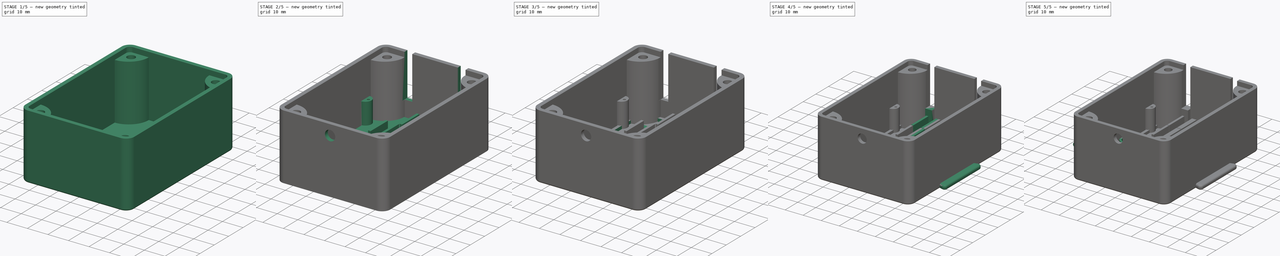
[diagram: build sequence overview — one tinted view per stage of 5, left to right]
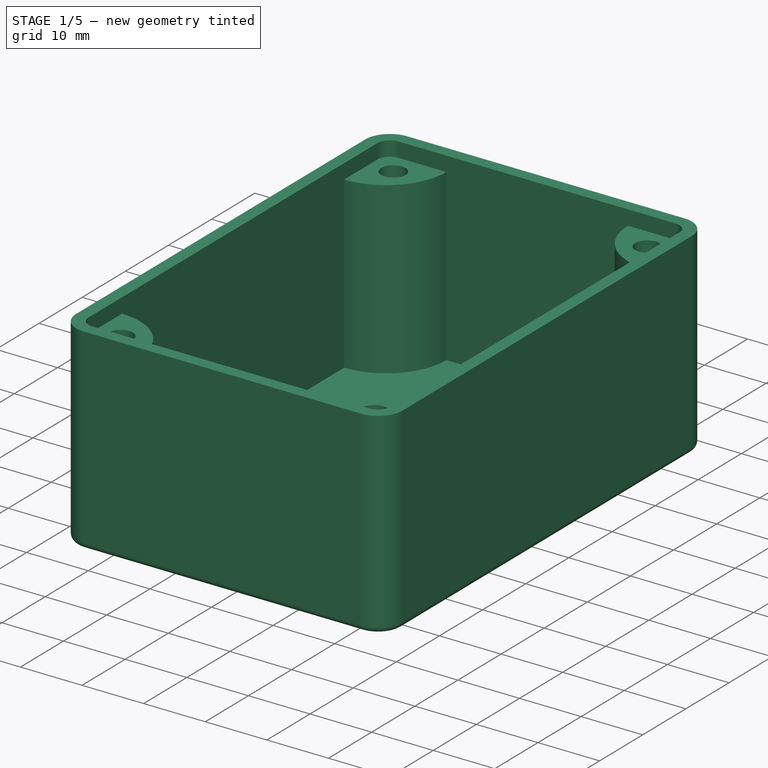
[diagram: stage 1 of 5 — iso view after this stage's code; geometry added in this stage tinted green]
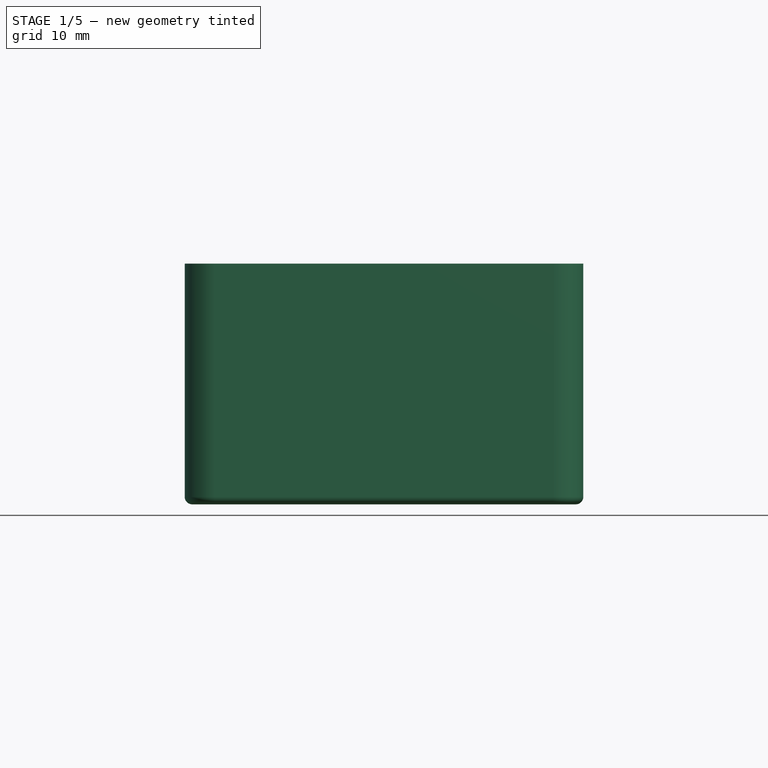
[diagram: stage 1 of 5 — front view after this stage's code; geometry added in this stage tinted green]
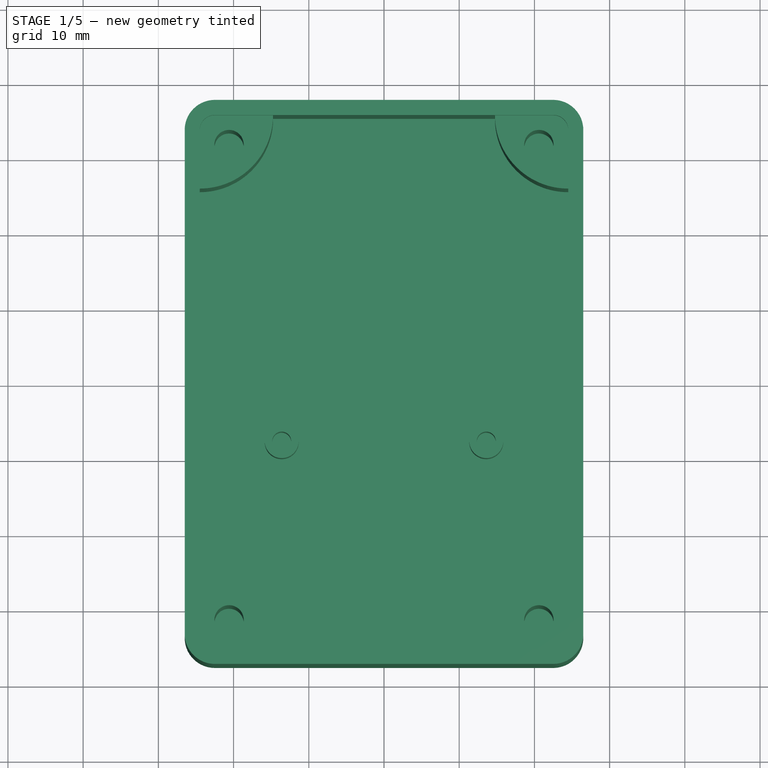
[diagram: stage 1 of 5 — top view after this stage's code; geometry added in this stage tinted green]
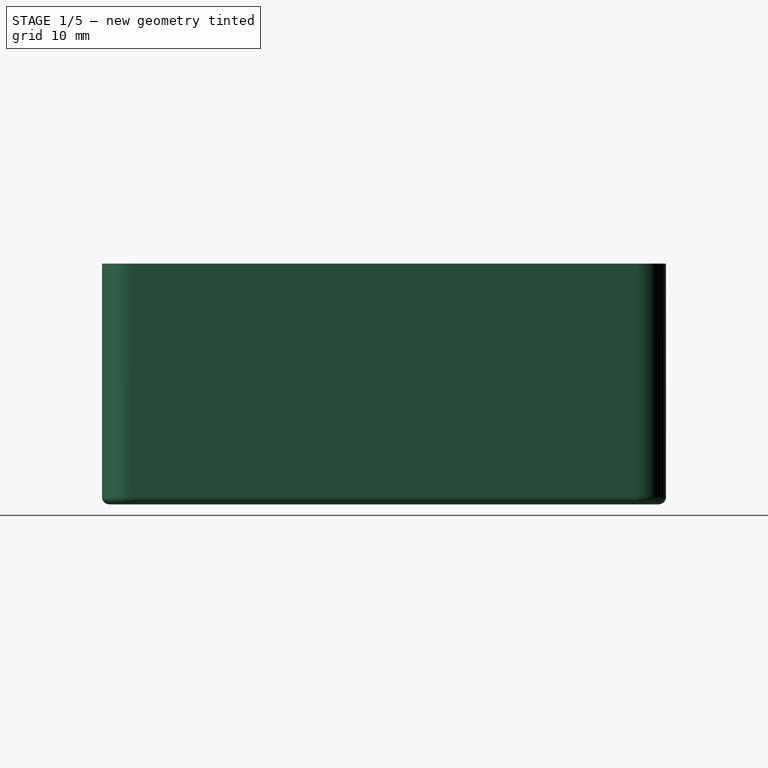
[diagram: stage 1 of 5 — right view after this stage's code; geometry added in this stage tinted green]
FCSTD DOCUMENT  (FreeCAD 0.21R33771 (Git))
Label: Key3
License: All rights reserved
LicenseURL: http://en.wikipedia.org/wiki/All_rights_reserved
objects: Sketcher::SketchObject×21, PartDesign::Pad×15, PartDesign::Fillet×6, PartDesign::Pocket×6, PartDesign::Mirrored×6, PartDesign::Body×3, App::Part×3, PartDesign::MultiTransform×3, Spreadsheet::Sheet×1, PartDesign::Chamfer×1
note: 89 computed .brp shape members not serialized (recipe doc carries the construction recipe); baked Part::Feature solids carry a one-line shape summary decoded from their .brp

FEATURE [PartDesign::Body] Body  label="KeyBody"
  Group = -> [Sketch,Pad,Fillet,Fillet001,Fillet002,Sketch001,Pad001,Sketch002,Pad002,Sketch003,Pad003,Sketch004,Pocket,Fillet003]
  Origin = -> Origin001
  Tip = -> Fillet003
FEATURE [App::Part] Part  label="KeyPart"
  Group = -> [Body]
  Origin = -> Origin
FEATURE [Sketcher::SketchObject] Sketch005  label="Main Body Sketch"
  FullyConstrained = true
  MapMode = 5
  Support = -> [XY_Plane003]
  expr: Constraints[16] = <<p>>.box_outer_radius
  expr: Constraints[17] = <<p>>.box_outer_width / 2
  expr: Constraints[18] = <<p>>.box_outer_length / 2
  sketch-geometry (8):
    g0: LineSegment StartX=-22.5 StartY=37.5 StartZ=0 EndX=22.5 EndY=37.5 EndZ=0
    g1: LineSegment StartX=26.5 StartY=33.5 StartZ=0 EndX=26.5 EndY=-33.5 EndZ=0
    g2: LineSegment StartX=22.5 StartY=-37.5 StartZ=0 EndX=-22.5 EndY=-37.5 EndZ=0
    g3: LineSegment StartX=-26.5 StartY=-33.5 StartZ=0 EndX=-26.5 EndY=33.5 EndZ=0
    g4: ArcOfCircle CenterX=-22.5 CenterY=33.5 CenterZ=0 NormalX=0 NormalY=0 NormalZ=1 AngleXU=0 Radius=4 StartAngle=1.5708 EndAngle=3.14159
    g5: ArcOfCircle CenterX=22.5 CenterY=33.5 CenterZ=0 NormalX=0 NormalY=0 NormalZ=1 AngleXU=0 Radius=4 StartAngle=-9e-16 EndAngle=1.5708
    g6: ArcOfCircle CenterX=22.5 CenterY=-33.5 CenterZ=0 NormalX=0 NormalY=0 NormalZ=1 AngleXU=0 Radius=4 StartAngle=4.71239 EndAngle=6.28319
    g7: ArcOfCircle CenterX=-22.5 CenterY=-33.5 CenterZ=0 NormalX=0 NormalY=0 NormalZ=1 AngleXU=0 Radius=4 StartAngle=3.14159 EndAngle=4.71239
  constraints (19):
    c: Horizontal(g0)
    c: Horizontal(g2)
    c: Vertical(g1)
    c: Vertical(g3)
    c: Tangent(g3,g4) = 1.5708
    c: Tangent(g0,g4) = 1.5708
    c: Tangent(g0,g5) = 1.5708
    c: Tangent(g1,g5) = 1.5708
    c: Tangent(g1,g6) = 1.5708
    c: Tangent(g2,g6) = 1.5708
    c: Tangent(g2,g7) = 1.5708
    c: Tangent(g3,g7) = 1.5708
    c: Symmetric(g5,g7,g-1)
    c: Equal(g6,g7)
    c: Equal(g7,g4)
    c: Equal(g4,g5)
    c: Radius(g5) = 4
    c: DistanceX(g3,g-1) = 26.5
    c: DistanceY(g-1,g0) = 37.5
FEATURE [PartDesign::Pad] Pad004  label="Box Outer Body"
  Direction = (0,0,1)
  Length = 32
  Length2 = 10
  Profile = -> Sketch005
  ReferenceAxis = -> Sketch005 [N_Axis]
  Type = 0
  expr: Length = <<p>>.box_outer_depth
FEATURE [Sketcher::SketchObject] Sketch006  label="Inner Body Sketch"
  FullyConstrained = true
  MapMode = 5
  Placement = pos=(0,0,32) rot=(0,0,1;0rad)
  Support = -> [Pad004]
  expr: Constraints[16] = <<p>>.box_inner_width / 2
  expr: Constraints[17] = <<p>>.box_inner_length / 2
  expr: Constraints[18] = <<p>>.box_inner_radius
  sketch-geometry (8):
    g0: LineSegment StartX=-22.5 StartY=35.5 StartZ=0 EndX=22.5 EndY=35.5 EndZ=0
    g1: LineSegment StartX=24.5 StartY=33.5 StartZ=0 EndX=24.5 EndY=-33.5 EndZ=0
    g2: LineSegment StartX=22.5 StartY=-35.5 StartZ=0 EndX=-22.5 EndY=-35.5 EndZ=0
    g3: LineSegment StartX=-24.5 StartY=-33.5 StartZ=0 EndX=-24.5 EndY=33.5 EndZ=0
    g4: ArcOfCircle CenterX=-22.5 CenterY=33.5 CenterZ=0 NormalX=0 NormalY=0 NormalZ=1 AngleXU=0 Radius=2 StartAngle=1.5708 EndAngle=3.14159
    g5: ArcOfCircle CenterX=22.5 CenterY=33.5 CenterZ=0 NormalX=0 NormalY=0 NormalZ=1 AngleXU=0 Radius=2 StartAngle=-9e-16 EndAngle=1.5708
    g6: ArcOfCircle CenterX=22.5 CenterY=-33.5 CenterZ=0 NormalX=0 NormalY=0 NormalZ=1 AngleXU=0 Radius=2 StartAngle=4.71239 EndAngle=6.28319
    g7: ArcOfCircle CenterX=-22.5 CenterY=-33.5 CenterZ=0 NormalX=0 NormalY=0 NormalZ=1 AngleXU=0 Radius=2 StartAngle=3.14159 EndAngle=4.71239
  constraints (19):
    c: Horizontal(g0)
    c: Horizontal(g2)
    c: Vertical(g1)
    c: Vertical(g3)
    c: Tangent(g3,g4) = 1.5708
    c: Tangent(g0,g4) = 1.5708
    c: Tangent(g0,g5) = 1.5708
    c: Tangent(g1,g5) = 1.5708
    c: Tangent(g1,g6) = 1.5708
    c: Tangent(g2,g6) = 1.5708
    c: Tangent(g2,g7) = 1.5708
    c: Tangent(g3,g7) = 1.5708
    c: Equal(g4,g5)
    c: Equal(g5,g6)
    c: Equal(g6,g7)
    c: Symmetric(g5,g7,g-1)
    c: DistanceX(g3,g-1) = 24.5
    c: DistanceY(g-1,g0) = 35.5
    c: Radius(g5) = 2
FEATURE [PartDesign::Pocket] Pocket001  label="Box Inner Pocket"
  BaseFeature = -> Pad004
  Direction = (0,0,-1)
  Length = 30
  Length2 = 5
  Profile = -> Sketch006
  ReferenceAxis = -> Sketch006 [N_Axis]
  Type = 0
  expr: Length = <<p>>.box_inner_depth
FEATURE [Sketcher::SketchObject] Sketch007  label="Lug Sketch"
  FullyConstrained = true
  MapMode = 5
  Placement = pos=(0,0,2) rot=(0,0,1;0rad)
  Support = -> [Pocket001]
  expr: Constraints[10] = <<p>>.lug_insert_diameter
  expr: Constraints[11] = <<p>>.lug_insert_diameter
  expr: Constraints[6] = <<p>>.lug_outer_radius
  expr: Constraints[7] = <<p>>.box_inner_width / 2
  expr: Constraints[8] = <<p>>.box_inner_length / 2
  expr: Constraints[9] = <<p>>.lug_insert_diameter
  sketch-geometry (4):
    g0: LineSegment StartX=-24.5 StartY=25.75 StartZ=0 EndX=-24.5 EndY=35.5 EndZ=0
    g1: LineSegment StartX=-24.5 StartY=35.5 StartZ=0 EndX=-14.75 EndY=35.5 EndZ=0
    g2: ArcOfCircle CenterX=-24.5 CenterY=35.5 CenterZ=0 NormalX=0 NormalY=0 NormalZ=1 AngleXU=0 Radius=9.75 StartAngle=4.71239 EndAngle=6.28319
    g3: Circle CenterX=-20.6 CenterY=31.6 CenterZ=0 NormalX=0 NormalY=0 NormalZ=1 AngleXU=0 Radius=1.95
  constraints (12):
    c: Vertical(g0)
    c: Coincident(g0,g1)
    c: Horizontal(g1)
    c: Coincident(g2,g0)
    c: Coincident(g2,g1)
    c: Coincident(g2,g0)
    c: Radius(g2) = 9.75
    c: DistanceX(g0,g-1) = 24.5
    c: DistanceY(g-1,g0) = 35.5
    c: Diameter(g3) = 3.9
    c: DistanceX(g0,g3) = 3.9
    c: DistanceY(g3,g0) = 3.9
FEATURE [PartDesign::Mirrored] Mirrored
  MirrorPlane = -> Sketch007 [V_Axis]
FEATURE [PartDesign::Mirrored] Mirrored001
  MirrorPlane = -> Sketch007 [H_Axis]
FEATURE [PartDesign::Pad] Pad005  label="Lug"
  BaseFeature = -> Pocket001
  Direction = (0,0,1)
  Length = 27.6
  Length2 = 10
  Profile = -> Sketch007
  ReferenceAxis = -> Sketch007 [N_Axis]
  Type = 0
  expr: Length = <<p>>.lug_depth - <<p>>.box_wall_clearance
FEATURE [PartDesign::MultiTransform] MultiTransform  label="Lugs Mirror"
  BaseFeature = -> Pad005
  Originals = -> [Pad005]
  Transformations = -> [Mirrored,Mirrored001]
FEATURE [PartDesign::Fillet] Fillet004
  Base = -> MultiTransform [Edge3,Edge9,Edge11,Edge12,Edge13,Edge14,Edge15,Edge6]
  BaseFeature = -> MultiTransform
  Radius = 1
  SupportTransform = false
  UseAllEdges = false
  expr: Radius = Spreadsheet.face_fillet
FEATURE [Sketcher::SketchObject] Sketch013
  FullyConstrained = true
  MapMode = 5
  Placement = pos=(0,0,2) rot=(0,0,1;0rad)
  Support = -> [Fillet004]
  expr: Constraints[3] = <<p>>.key_paddle_thickness + 0.02
  expr: Constraints[5] = <<p>>.key_paddle_thickness + 2.02
  expr: Constraints[6] = <<p>>.button_body_depth + <<p>>.button_stem_length + <<p>>.key_paddle_thickness / 2
  expr: Constraints[7] = <<p>>.button_body_depth + <<p>>.button_stem_length + <<p>>.key_paddle_thickness / 2
  expr: Constraints[8] = -<<p>>.box_outer_length / 2 + <<p>>.key_stem_length
  expr: Constraints[9] = -<<p>>.box_outer_length / 2 + <<p>>.key_stem_length
  sketch-geometry (4):
    g0: Circle CenterX=-13.6 CenterY=-7.5 CenterZ=0 NormalX=0 NormalY=0 NormalZ=1 AngleXU=0 Radius=1.26
    g1: Circle CenterX=13.6 CenterY=-7.5 CenterZ=0 NormalX=0 NormalY=0 NormalZ=1 AngleXU=0 Radius=1.26
    g2: Circle CenterX=13.6 CenterY=-7.5 CenterZ=0 NormalX=0 NormalY=0 NormalZ=1 AngleXU=0 Radius=2.26
    g3: Circle CenterX=-13.6 CenterY=-7.5 CenterZ=0 NormalX=0 NormalY=0 NormalZ=1 AngleXU=0 Radius=2.26
  constraints (10):
    c: Coincident(g2,g1)
    c: Coincident(g3,g0)
    c: Equal(g0,g1)
    c: Diameter(g0) = 2.52
    c: Equal(g3,g2)
    c: Diameter(g3) = 4.52
    c: DistanceX(g0,g-1) = 13.6
    c: DistanceX(g-1,g1) = 13.6
    c: DistanceY(g0,g-1) = 7.5
    c: DistanceY(g1,g-1) = 7.5
FEATURE [Sketcher::SketchObject] Sketch014
  FullyConstrained = true
  MapMode = 5
  Placement = pos=(0,0,2) rot=(0,0,1;0rad)
  Support = -> [Chamfer]
  expr: Constraints[3] = <<p>>.key_paddle_thickness + 0.02
  expr: Constraints[5] = <<p>>.key_paddle_thickness + 2.02
  expr: Constraints[6] = <<p>>.button_body_depth + <<p>>.button_stem_length + <<p>>.key_paddle_thickness / 2
  expr: Constraints[7] = <<p>>.button_body_depth + <<p>>.button_stem_length + <<p>>.key_paddle_thickness / 2
  expr: Constraints[8] = -<<p>>.box_outer_length / 2 + <<p>>.key_stem_length
  expr: Constraints[9] = -<<p>>.box_outer_length / 2 + <<p>>.key_stem_length
  sketch-geometry (4):
    g0: Circle CenterX=-13.6 CenterY=-7.5 CenterZ=0 NormalX=0 NormalY=0 NormalZ=1 AngleXU=0 Radius=1.26
    g1: Circle CenterX=13.6 CenterY=-7.5 CenterZ=0 NormalX=0 NormalY=0 NormalZ=1 AngleXU=0 Radius=1.26
    g2: Circle CenterX=13.6 CenterY=-7.5 CenterZ=0 NormalX=0 NormalY=0 NormalZ=1 AngleXU=0 Radius=2.26
    g3: Circle CenterX=-13.6 CenterY=-7.5 CenterZ=0 NormalX=0 NormalY=0 NormalZ=1 AngleXU=0 Radius=2.26
  constraints (10):
    c: Coincident(g2,g1)
    c: Coincident(g3,g0)
    c: Equal(g0,g1)
    c: Diameter(g0) = 2.52
    c: Equal(g3,g2)
    c: Diameter(g3) = 4.52
    c: DistanceX(g0,g-1) = 13.6
    c: DistanceX(g-1,g1) = 13.6
    c: DistanceY(g0,g-1) = 7.5
    c: DistanceY(g1,g-1) = 7.5
FEATURE [PartDesign::Pad] Pad009  label="KeyHolderBottom"
  BaseFeature = -> Fillet004
  Direction = (0,0,1)
  Length = 9
  Length2 = 10
  Profile = -> Sketch013
  ReferenceAxis = -> Sketch013 [N_Axis]
  Type = 0
  expr: Length = <<p>>.box_outer_depth / 2 - <<p>>.box_wall_thickness / 2 - <<p>>.button_body_length / 2
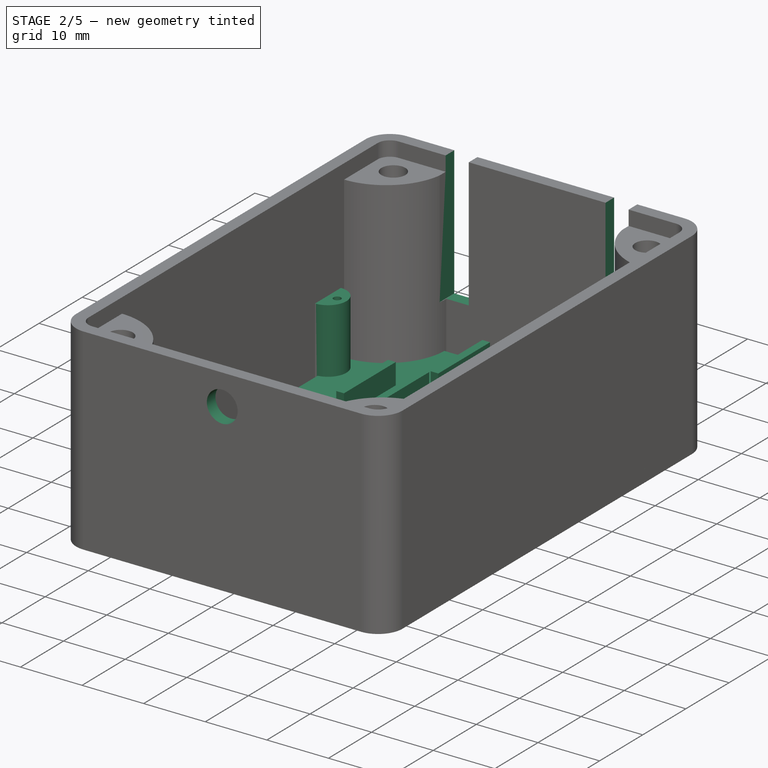
[diagram: stage 2 of 5 — iso view after this stage's code; geometry added in this stage tinted green]
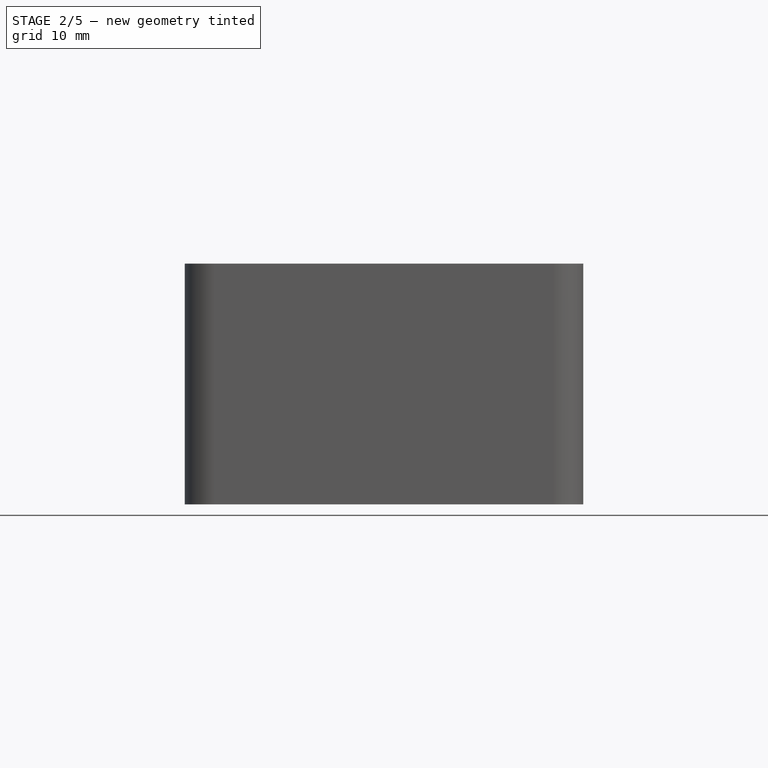
[diagram: stage 2 of 5 — front view after this stage's code; geometry added in this stage tinted green]
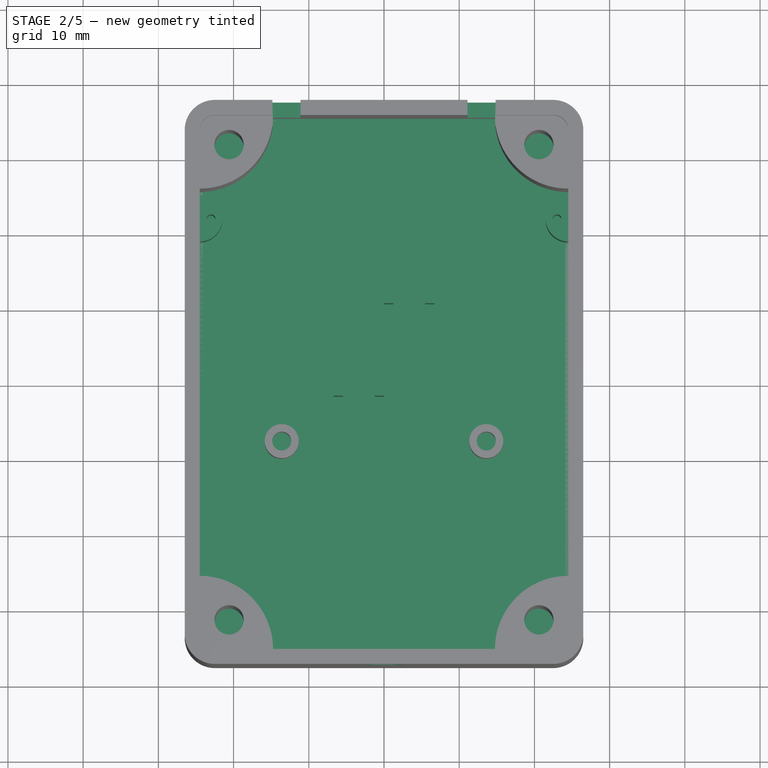
[diagram: stage 2 of 5 — top view after this stage's code; geometry added in this stage tinted green]
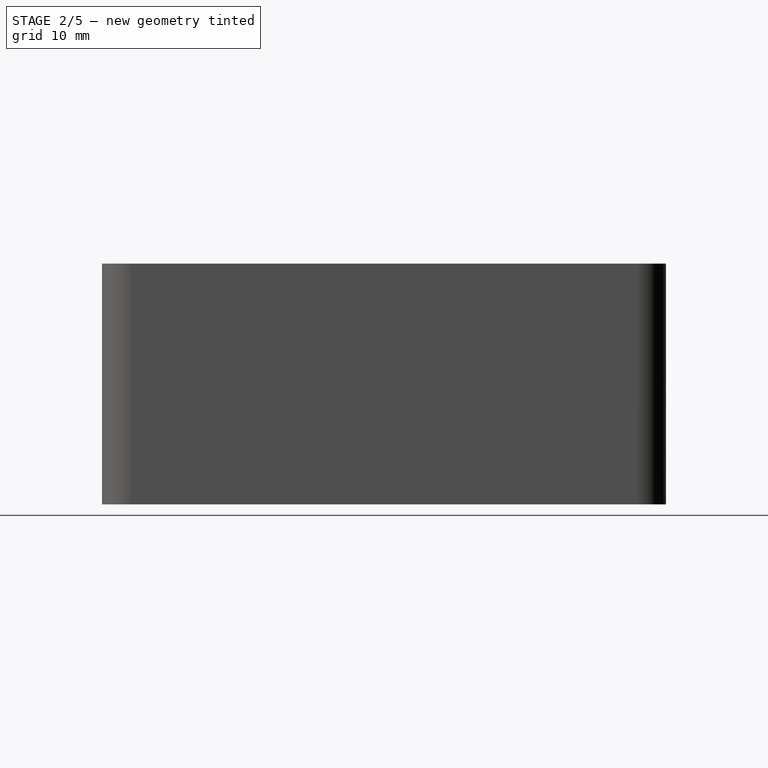
[diagram: stage 2 of 5 — right view after this stage's code; geometry added in this stage tinted green]
FEATURE [Sketcher::SketchObject] Sketch008  label="Main Lid Sketch"
  FullyConstrained = true
  MapMode = 5
  Support = -> [XY_Plane005]
  expr: Constraints[15] = <<p>>.box_outer_radius
  expr: Constraints[17] = <<p>>.box_outer_length / 2
  expr: Constraints[18] = <<p>>.box_outer_width / 2
  sketch-geometry (8):
    g0: LineSegment StartX=-22.5 StartY=37.5 StartZ=0 EndX=22.5 EndY=37.5 EndZ=0
    g1: LineSegment StartX=26.5 StartY=33.5 StartZ=0 EndX=26.5 EndY=-33.5 EndZ=0
    g2: LineSegment StartX=22.5 StartY=-37.5 StartZ=0 EndX=-22.5 EndY=-37.5 EndZ=0
    g3: LineSegment StartX=-26.5 StartY=-33.5 StartZ=0 EndX=-26.5 EndY=33.5 EndZ=0
    g4: ArcOfCircle CenterX=-22.5 CenterY=33.5 CenterZ=0 NormalX=0 NormalY=0 NormalZ=1 AngleXU=0 Radius=4 StartAngle=1.5708 EndAngle=3.14159
    g5: ArcOfCircle CenterX=22.5 CenterY=33.5 CenterZ=0 NormalX=0 NormalY=0 NormalZ=1 AngleXU=0 Radius=4 StartAngle=-9e-16 EndAngle=1.5708
    g6: ArcOfCircle CenterX=22.5 CenterY=-33.5 CenterZ=0 NormalX=0 NormalY=0 NormalZ=1 AngleXU=0 Radius=4 StartAngle=4.71239 EndAngle=6.28319
    g7: ArcOfCircle CenterX=-22.5 CenterY=-33.5 CenterZ=0 NormalX=0 NormalY=0 NormalZ=1 AngleXU=0 Radius=4 StartAngle=3.14159 EndAngle=4.71239
  constraints (19):
    c: Horizontal(g0)
    c: Horizontal(g2)
    c: Vertical(g1)
    c: Vertical(g3)
    c: Tangent(g0,g4) = 1.5708
    c: Tangent(g3,g4) = 1.5708
    c: Tangent(g0,g5) = 1.5708
    c: Tangent(g1,g5) = 1.5708
    c: Tangent(g1,g6) = 1.5708
    c: Tangent(g2,g6) = 1.5708
    c: Tangent(g2,g7) = 1.5708
    c: Tangent(g3,g7) = 1.5708
    c: Equal(g4,g5)
    c: Equal(g5,g6)
    c: Equal(g6,g7)
    c: Radius(g5) = 4
    c: Symmetric(g4,g6,g-1)
    c: DistanceY(g-1,g0) = 37.5
    c: DistanceX(g3,g-1) = 26.5
FEATURE [PartDesign::Pad] Pad006  label="Main Outer Lid"
  Direction = (0,0,1)
  Length = 2
  Length2 = 10
  Profile = -> Sketch008
  ReferenceAxis = -> Sketch008 [N_Axis]
  Type = 0
  expr: Length = <<p>>.box_wall_thickness
FEATURE [Sketcher::SketchObject] Sketch009  label="Main Inner Ring Sketch"
  FullyConstrained = true
  MapMode = 5
  Placement = pos=(0,0,2) rot=(0,0,1;0rad)
  Support = -> [Pad006]
  expr: Constraints[15] = <<p>>.box_inner_radius
  expr: Constraints[17] = <<p>>.box_inner_width / 2 - <<p>>.box_wall_clearance
  expr: Constraints[18] = <<p>>.box_inner_length / 2 - <<p>>.box_wall_clearance
  sketch-geometry (8):
    g0: LineSegment StartX=-22.1 StartY=35.1 StartZ=0 EndX=22.1 EndY=35.1 EndZ=0
    g1: LineSegment StartX=24.1 StartY=33.1 StartZ=0 EndX=24.1 EndY=-33.1 EndZ=0
    g2: LineSegment StartX=22.1 StartY=-35.1 StartZ=0 EndX=-22.1 EndY=-35.1 EndZ=0
    g3: LineSegment StartX=-24.1 StartY=-33.1 StartZ=0 EndX=-24.1 EndY=33.1 EndZ=0
    g4: ArcOfCircle CenterX=-22.1 CenterY=33.1 CenterZ=0 NormalX=0 NormalY=0 NormalZ=1 AngleXU=0 Radius=2 StartAngle=1.5708 EndAngle=3.14159
    g5: ArcOfCircle CenterX=22.1 CenterY=33.1 CenterZ=0 NormalX=0 NormalY=0 NormalZ=1 AngleXU=0 Radius=2 StartAngle=-1.8e-15 EndAngle=1.5708
    g6: ArcOfCircle CenterX=22.1 CenterY=-33.1 CenterZ=0 NormalX=0 NormalY=0 NormalZ=1 AngleXU=0 Radius=2 StartAngle=4.71239 EndAngle=6.28319
    g7: ArcOfCircle CenterX=-22.1 CenterY=-33.1 CenterZ=0 NormalX=0 NormalY=0 NormalZ=1 AngleXU=0 Radius=2 StartAngle=3.14159 EndAngle=4.71239
  constraints (19):
    c: Horizontal(g0)
    c: Horizontal(g2)
    c: Vertical(g1)
    c: Vertical(g3)
    c: Tangent(g3,g4) = 1.5708
    c: Tangent(g0,g4) = 1.5708
    c: Tangent(g0,g5) = 1.5708
    c: Tangent(g1,g5) = 1.5708
    c: Tangent(g1,g6) = 1.5708
    c: Tangent(g2,g6) = 1.5708
    c: Tangent(g2,g7) = 1.5708
    c: Tangent(g3,g7) = 1.5708
    c: Equal(g4,g5)
    c: Equal(g5,g6)
    c: Equal(g6,g7)
    c: Radius(g5) = 2
    c: Symmetric(g4,g6,g-1)
    c: DistanceX(g3,g-1) = 24.1
    c: DistanceY(g-1,g0) = 35.1
FEATURE [PartDesign::Pad] Pad007  label="Main Inner Ring"
  BaseFeature = -> Pad006
  Direction = (0,0,1)
  Length = 1.5
  Length2 = 10
  Profile = -> Sketch009
  ReferenceAxis = -> Sketch009 [N_Axis]
  Type = 0
  expr: Length = Spreadsheet.lid_ridge_size
FEATURE [Sketcher::SketchObject] Sketch015
  FullyConstrained = true
  MapMode = 5
  Placement = pos=(0,0,2) rot=(0,0,1;0rad)
  Support = -> [Pad009]
  expr: Constraints[20] = <<p>>.button_body_length
  expr: Constraints[21] = <<p>>.button_body_length
  expr: Constraints[22] = -<<p>>.box_outer_length / 2 + <<p>>.key_stem_length - <<p>>.button_body_width / 2
  expr: Constraints[42] = <<p>>.button_body_length
  expr: Constraints[43] = <<p>>.button_body_length
  expr: Constraints[46] = <<p>>.button_body_depth
  expr: Constraints[47] = <<p>>.button_body_depth
  sketch-geometry (16):
    g0: LineSegment StartX=0 StartY=10.5 StartZ=0 EndX=-1.25 EndY=10.5 EndZ=0
    g1: LineSegment StartX=-1.25 StartY=10.5 StartZ=0 EndX=-1.25 EndY=-1.5 EndZ=0
    g2: LineSegment StartX=-1.25 StartY=-1.5 StartZ=0 EndX=0 EndY=-1.5 EndZ=0
    g3: LineSegment StartX=0 StartY=-1.5 StartZ=0 EndX=0 EndY=10.5 EndZ=0
    g4: LineSegment StartX=0 StartY=10.8 StartZ=0 EndX=1.25 EndY=10.8 EndZ=0
    g5: LineSegment StartX=1.25 StartY=10.8 StartZ=0 EndX=1.25 EndY=22.8 EndZ=0
    g6: LineSegment StartX=1.25 StartY=22.8 StartZ=0 EndX=0 EndY=22.8 EndZ=0
    g7: LineSegment StartX=0 StartY=22.8 StartZ=0 EndX=0 EndY=10.8 EndZ=0
    g8: LineSegment StartX=5.45 StartY=22.8 StartZ=0 EndX=6.7 EndY=22.8 EndZ=0
    g9: LineSegment StartX=6.7 StartY=22.8 StartZ=0 EndX=6.7 EndY=10.8 EndZ=0
    g10: LineSegment StartX=6.7 StartY=10.8 StartZ=0 EndX=5.45 EndY=10.8 EndZ=0
    g11: LineSegment StartX=5.45 StartY=10.8 StartZ=0 EndX=5.45 EndY=22.8 EndZ=0
    g12: LineSegment StartX=-6.7 StartY=10.5 StartZ=0 EndX=-5.45 EndY=10.5 EndZ=0
    g13: LineSegment StartX=-5.45 StartY=10.5 StartZ=0 EndX=-5.45 EndY=-1.5 EndZ=0
    g14: LineSegment StartX=-5.45 StartY=-1.5 StartZ=0 EndX=-6.7 EndY=-1.5 EndZ=0
    g15: LineSegment StartX=-6.7 StartY=-1.5 StartZ=0 EndX=-6.7 EndY=10.5 EndZ=0
  constraints (48):
    c: Coincident(g0,g1)
    c: Coincident(g1,g2)
    c: Coincident(g2,g3)
    c: Coincident(g3,g0)
    c: Horizontal(g0)
    c: Horizontal(g2)
    c: Vertical(g1)
    c: Vertical(g3)
    c: PointOnObject(g0,g-2)
    c: Coincident(g4,g5)
    c: Coincident(g5,g6)
    c: Coincident(g6,g7)
    c: Coincident(g7,g4)
    c: Horizontal(g4)
    c: Horizontal(g6)
    c: Vertical(g5)
    c: Vertical(g7)
    c: PointOnObject(g4,g-2)
    c: DistanceX(g6,g6) = 1.25
    c: DistanceX(g0,g0) = 1.25
    c: DistanceY(g1,g1) = 12
    c: DistanceY(g5,g5) = 12
    c: DistanceY(g2,g-1) = 1.5
    c: DistanceY(g0,g4) = 0.3
    c: Coincident(g8,g9)
    c: Coincident(g9,g10)
    c: Coincident(g10,g11)
    c: Coincident(g11,g8)
    c: Horizontal(g8)
    c: Horizontal(g10)
    c: Vertical(g9)
    c: Vertical(g11)
    c: Coincident(g12,g13)
    c: Coincident(g13,g14)
    c: Coincident(g14,g15)
    c: Coincident(g15,g12)
    c: Horizontal(g12)
    c: Horizontal(g14)
    c: Vertical(g13)
    c: Vertical(g15)
    c: DistanceX(g10,g10) = 1.25
    c: DistanceX(g14,g14) = 1.25
    c: DistanceY(g9,g9) = 12
    c: DistanceY(g15,g15) = 12
    c: DistanceY(g13,g1) = 0
    c: DistanceY(g4,g10) = 0
    c: DistanceX(g13,g1) = 4.2
    c: DistanceX(g4,g10) = 4.2
FEATURE [PartDesign::Pad] Pad011  label="ButtonBodyHolders"
  BaseFeature = -> Pad009
  Direction = (0,0,1)
  Length = 11.75
  Length2 = 10
  Profile = -> Sketch015
  ReferenceAxis = -> Sketch015 [N_Axis]
  Type = 0
  expr: Length = <<p>>.box_outer_depth / 2 - <<p>>.box_wall_thickness / 2 - <<p>>.button_body_length / 2 + <<p>>.button_lip_clearance
FEATURE [Sketcher::SketchObject] Sketch017
  FullyConstrained = true
  MapMode = 5
  Placement = pos=(0,0,32) rot=(0,0,1;0rad)
  Support = -> [Pad011]
  expr: Constraints[16] = <<p>>.key_paddle_thickness * 1.5
  expr: Constraints[17] = <<p>>.key_paddle_thickness * 1.5
  expr: Constraints[18] = <<p>>.button_body_depth + <<p>>.button_stem_length + <<p>>.key_paddle_thickness
  expr: Constraints[19] = <<p>>.button_body_depth + <<p>>.button_stem_length + <<p>>.key_paddle_thickness
  sketch-geometry (8):
    g0: LineSegment StartX=-14.85 StartY=39.2208 StartZ=0 EndX=-11.1 EndY=39.2208 EndZ=0
    g1: LineSegment StartX=-11.1 StartY=39.2208 StartZ=0 EndX=-11.1 EndY=33.7407 EndZ=0
    g2: LineSegment StartX=-11.1 StartY=33.7407 StartZ=0 EndX=-14.85 EndY=33.7407 EndZ=0
    g3: LineSegment StartX=-14.85 StartY=33.7407 StartZ=0 EndX=-14.85 EndY=39.2208 EndZ=0
    g4: LineSegment StartX=11.1 StartY=39.79 StartZ=0 EndX=14.85 EndY=39.79 EndZ=0
    g5: LineSegment StartX=14.85 StartY=39.79 StartZ=0 EndX=14.85 EndY=33.65 EndZ=0
    g6: LineSegment StartX=14.85 StartY=33.65 StartZ=0 EndX=11.1 EndY=33.65 EndZ=0
    g7: LineSegment StartX=11.1 StartY=33.65 StartZ=0 EndX=11.1 EndY=39.79 EndZ=0
  constraints (24):
    c: Coincident(g0,g1)
    c: Coincident(g1,g2)
    c: Coincident(g2,g3)
    c: Coincident(g3,g0)
    c: Horizontal(g0)
    c: Horizontal(g2)
    c: Vertical(g1)
    c: Vertical(g3)
    c: Coincident(g4,g5)
    c: Coincident(g5,g6)
    c: Coincident(g6,g7)
    c: Coincident(g7,g4)
    c: Horizontal(g4)
    c: Horizontal(g6)
    c: Vertical(g5)
    c: Vertical(g7)
    c: DistanceX(g0,g0) = 3.75
    c: DistanceX(g4,g4) = 3.75
    c: DistanceX(g2,g-1) = 14.85
    c: DistanceX(g-1,g5) = 14.85
    c: DistanceY(g1,g1) = 5.48
    c: DistanceY(g5,g5) = 6.14
    c: DistanceY(g6,g1) = 0.09075
    c: DistanceY(g-1,g6) = 33.65
FEATURE [PartDesign::Pocket] Pocket004  label="KeyPocket"
  BaseFeature = -> Pad011
  Direction = (0,0,-1)
  Length = 21
  Length2 = 5
  Profile = -> Sketch017
  ReferenceAxis = -> Sketch017 [N_Axis]
  Type = 0
  expr: Length = <<p>>.box_inner_depth - (<<p>>.box_outer_depth / 2 - <<p>>.box_wall_thickness / 2 - <<p>>.button_body_length / 2)
FEATURE [Sketcher::SketchObject] Sketch018
  FullyConstrained = true
  MapMode = 5
  Placement = pos=(0,-37.5,0) rot=(1,0,0;1.5708rad)
  Support = -> [Pocket004]
  expr: Constraints[2] = <<p>>.box_outer_depth - 5
  sketch-geometry (1):
    g0: Circle CenterX=0 CenterY=27 CenterZ=0 NormalX=0 NormalY=0 NormalZ=1 AngleXU=0 Radius=2.5
  constraints (3):
    c: PointOnObject(g0,g-2)
    c: Diameter(g0) = 5
    c: DistanceY(g-1,g0) = 27
FEATURE [PartDesign::Pocket] Pocket005
  BaseFeature = -> Pocket004
  Direction = (0,1,-2e-16)
  Length = 5
  Length2 = 5
  Profile = -> Sketch018
  ReferenceAxis = -> Sketch018 [N_Axis]
  Type = 0
FEATURE [PartDesign::Body] Body002  label="Main Lid"
  Group = -> [Sketch008,Pad006,Sketch009,Pad007,Sketch010,Pocket002,Sketch011,Pad008,MultiTransform001,Mirrored002,Mirrored003,Sketch012,Pocket003,MultiTransform002,Mirrored004,Mirrored005,Fillet005,Chamfer,Sketch014,Pad010,Sketch016,Pad012,Sketch019,Pad013]
  Origin = -> Origin005
  Tip = -> Pad013
FEATURE [App::Part] Part002  label="Lid"
  Group = -> [Body002]
  Origin = -> Origin004
FEATURE [Sketcher::SketchObject] Sketch020
  FullyConstrained = true
  MapMode = 5
  Placement = pos=(0,0,2) rot=(0,0,1;0rad)
  Support = -> [Pocket005]
  expr: Constraints[14] = <<p>>.box_outer_width / 2 - <<p>>.box_wall_thickness
  expr: Constraints[15] = <<p>>.box_outer_width / 2 - <<p>>.box_wall_thickness
  sketch-geometry (6):
    g0: LineSegment StartX=-24.5 StartY=25 StartZ=0 EndX=-24.5 EndY=19 EndZ=0
    g1: ArcOfCircle CenterX=-24.5 CenterY=22 CenterZ=0 NormalX=0 NormalY=0 NormalZ=1 AngleXU=0 Radius=3 StartAngle=4.71239 EndAngle=7.85398
    g2: Circle CenterX=-23 CenterY=22 CenterZ=0 NormalX=0 NormalY=0 NormalZ=1 AngleXU=0 Radius=0.6
    g3: LineSegment StartX=24.5 StartY=25 StartZ=0 EndX=24.5 EndY=19 EndZ=0
    g4: ArcOfCircle CenterX=24.5 CenterY=22 CenterZ=0 NormalX=0 NormalY=0 NormalZ=1 AngleXU=0 Radius=3 StartAngle=1.5708 EndAngle=4.71239
    g5: Circle CenterX=23 CenterY=22 CenterZ=0 NormalX=0 NormalY=0 NormalZ=1 AngleXU=0 Radius=0.6
  constraints (20):
    c: Vertical(g0)
    c: PointOnObject(g1,g0)
    c: Coincident(g1,g0)
    c: Coincident(g1,g0)
    c: DistanceY(g0,g0) = 6
    c: Diameter(g2) = 1.2
    c: Vertical(g3)
    c: PointOnObject(g4,g3)
    c: Coincident(g4,g3)
    c: Coincident(g4,g3)
    c: DistanceY(g3,g3) = 6
    c: Diameter(g5) = 1.2
    c: DistanceY(g5,g4) = 0
    c: DistanceX(g5,g4) = 1.5
    c: DistanceX(g0,g-1) = 24.5
    c: DistanceX(g-1,g3) = 24.5
    c: DistanceY(g-1,g0) = 19
    c: DistanceY(g-1,g3) = 19
    c: DistanceY(g2,g1) = 0
    c: DistanceX(g0,g2) = 1.5
FEATURE [PartDesign::Pad] Pad014
  BaseFeature = -> Pocket005
  Direction = (0,0,1)
  Length = 12
  Length2 = 10
  Profile = -> Sketch020
  ReferenceAxis = -> Sketch020 [N_Axis]
  Type = 0
  expr: Length = 12
FEATURE [PartDesign::Body] Body001  label="Main Box"
  Group = -> [Sketch005,Pad004,Sketch006,Pocket001,Sketch007,Pad005,MultiTransform,Mirrored,Mirrored001,Fillet004,Sketch013,Pad009,Sketch015,Pad011,Sketch017,Pocket004,Sketch018,Pocket005,Sketch020,Pad014]
  Origin = -> Origin003
  Tip = -> Pad014
FEATURE [App::Part] Part001  label="Box"
  Group = -> [Body001]
  Origin = -> Origin002
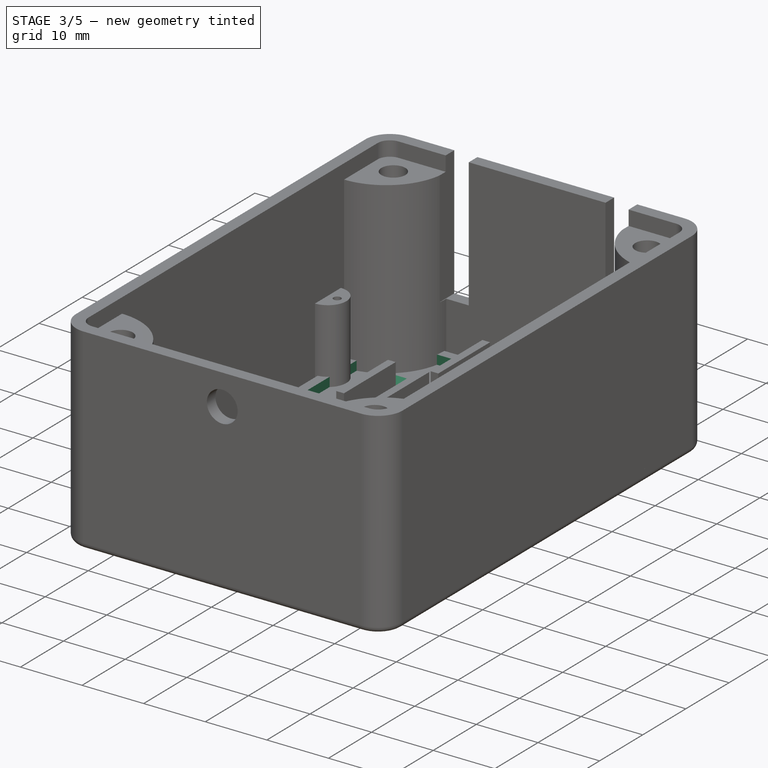
[diagram: stage 3 of 5 — iso view after this stage's code; geometry added in this stage tinted green]
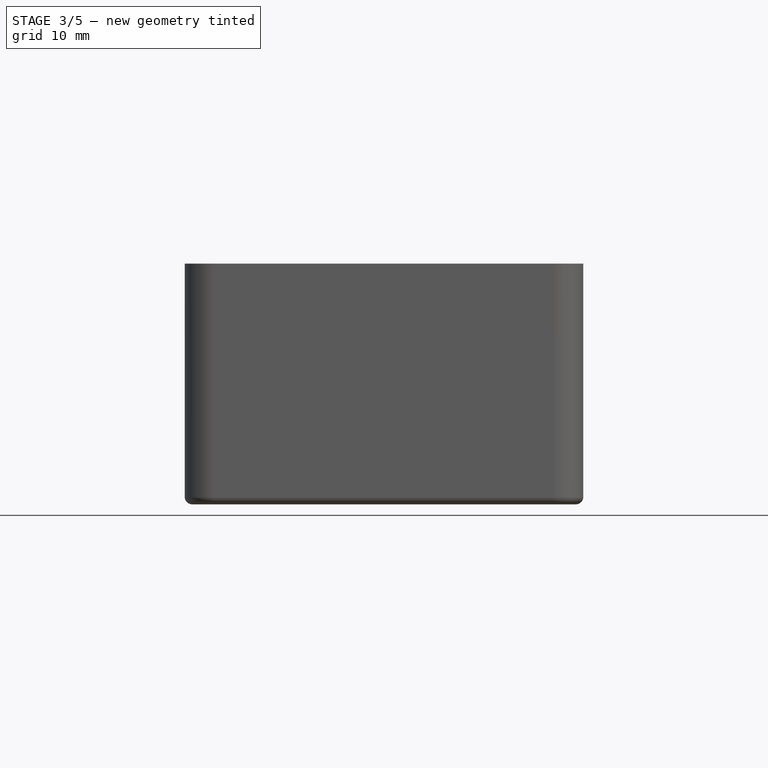
[diagram: stage 3 of 5 — front view after this stage's code; geometry added in this stage tinted green]
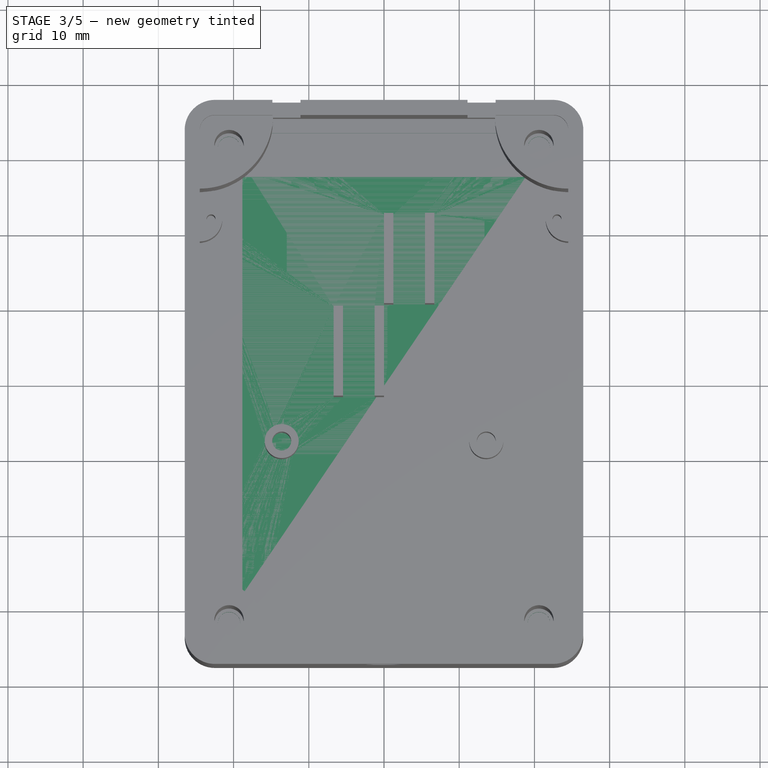
[diagram: stage 3 of 5 — top view after this stage's code; geometry added in this stage tinted green]
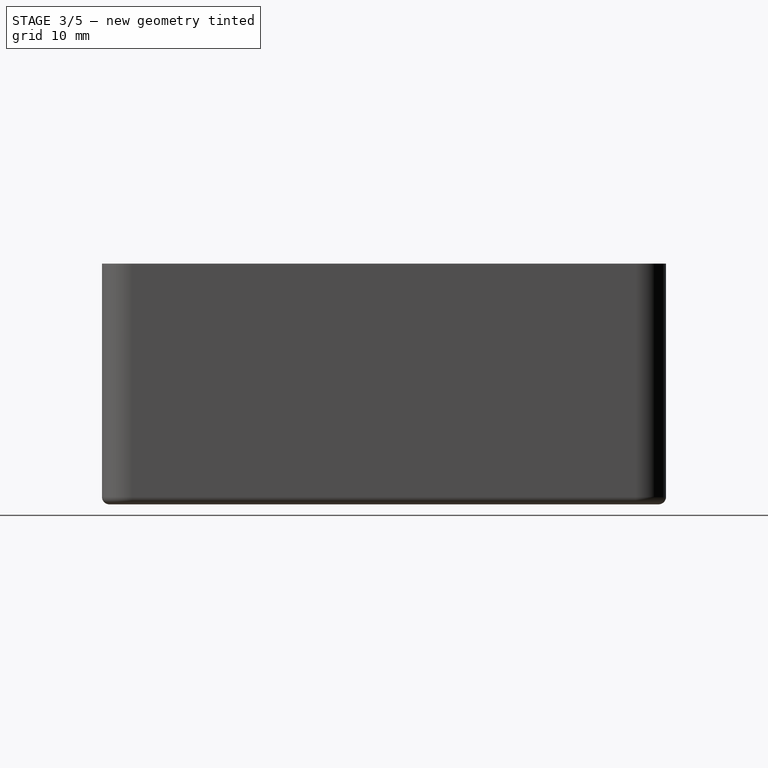
[diagram: stage 3 of 5 — right view after this stage's code; geometry added in this stage tinted green]
FEATURE [Sketcher::SketchObject] Sketch010  label="Main Ring Pocket Sketch"
  FullyConstrained = true
  MapMode = 5
  Placement = pos=(0,0,3.5) rot=(0,0,1;0rad)
  Support = -> [Pad007]
  expr: Constraints[15] = <<p>>.box_inner_radius / 2
  expr: Constraints[17] = <<p>>.box_inner_length / 2 - <<p>>.box_wall_clearance - Spreadsheet.lid_ridge_size
  expr: Constraints[18] = <<p>>.box_inner_width / 2 - <<p>>.box_wall_clearance - Spreadsheet.lid_ridge_size
  sketch-geometry (8):
    g0: LineSegment StartX=-21.6 StartY=33.6 StartZ=0 EndX=21.6 EndY=33.6 EndZ=0
    g1: LineSegment StartX=22.6 StartY=32.6 StartZ=0 EndX=22.6 EndY=-32.6 EndZ=0
    g2: LineSegment StartX=21.6 StartY=-33.6 StartZ=0 EndX=-21.6 EndY=-33.6 EndZ=0
    g3: LineSegment StartX=-22.6 StartY=-32.6 StartZ=0 EndX=-22.6 EndY=32.6 EndZ=0
    g4: ArcOfCircle CenterX=-21.6 CenterY=32.6 CenterZ=0 NormalX=0 NormalY=0 NormalZ=1 AngleXU=0 Radius=1 StartAngle=1.5708 EndAngle=3.14159
    g5: ArcOfCircle CenterX=21.6 CenterY=32.6 CenterZ=0 NormalX=0 NormalY=0 NormalZ=1 AngleXU=0 Radius=1 StartAngle=-3.6e-15 EndAngle=1.5708
    g6: ArcOfCircle CenterX=21.6 CenterY=-32.6 CenterZ=0 NormalX=0 NormalY=0 NormalZ=1 AngleXU=0 Radius=1 StartAngle=4.71239 EndAngle=6.28319
    g7: ArcOfCircle CenterX=-21.6 CenterY=-32.6 CenterZ=0 NormalX=0 NormalY=0 NormalZ=1 AngleXU=0 Radius=1 StartAngle=3.14159 EndAngle=4.71239
  constraints (19):
    c: Horizontal(g0)
    c: Horizontal(g2)
    c: Vertical(g1)
    c: Vertical(g3)
    c: Tangent(g3,g4) = 1.5708
    c: Tangent(g0,g4) = 1.5708
    c: Tangent(g0,g5) = 1.5708
    c: Tangent(g1,g5) = 1.5708
    c: Tangent(g1,g6) = 1.5708
    c: Tangent(g2,g6) = 1.5708
    c: Tangent(g2,g7) = 1.5708
    c: Tangent(g3,g7) = 1.5708
    c: Equal(g4,g5)
    c: Equal(g5,g6)
    c: Equal(g6,g7)
    c: Radius(g5) = 1
    c: Symmetric(g4,g6,g-1)
    c: DistanceY(g-1,g0) = 33.6
    c: DistanceX(g3,g-1) = 22.6
FEATURE [PartDesign::Pocket] Pocket002  label="Main Ring Pocket"
  BaseFeature = -> Pad007
  Direction = (0,0,-1)
  Length = 1.5
  Length2 = 5
  Profile = -> Sketch010
  ReferenceAxis = -> Sketch010 [N_Axis]
  Type = 0
  expr: Length = <<p>>.lid_ridge_size
FEATURE [Sketcher::SketchObject] Sketch011  label="Main Ring Lug Sketch"
  FullyConstrained = true
  MapMode = 5
  Placement = pos=(0,0,2) rot=(0,0,1;0rad)
  Support = -> [Pocket002]
  expr: Constraints[0] = <<p>>.lid_screw_diameter
  expr: Constraints[10] = <<p>>.box_inner_width / 2 - <<p>>.box_inner_width / 2 - <<p>>.lid_ridge_size + <<p>>.lug_insert_diameter
  expr: Constraints[11] = <<p>>.box_inner_length / 2 - <<p>>.box_inner_length / 2 - <<p>>.lid_ridge_size + <<p>>.lug_insert_diameter
  expr: Constraints[7] = <<p>>.lid_screw_diameter * 2.5
  expr: Constraints[8] = <<p>>.box_inner_length / 2 - <<p>>.lid_ridge_size
  expr: Constraints[9] = <<p>>.box_inner_width / 2 - <<p>>.lid_ridge_size
  sketch-geometry (4):
    g0: Circle CenterX=-20.6 CenterY=31.6 CenterZ=0 NormalX=0 NormalY=0 NormalZ=1 AngleXU=0 Radius=1.5
    g1: LineSegment StartX=-23 StartY=26.5 StartZ=0 EndX=-23 EndY=34 EndZ=0
    g2: LineSegment StartX=-23 StartY=34 StartZ=0 EndX=-15.5 EndY=34 EndZ=0
    g3: ArcOfCircle CenterX=-23 CenterY=34 CenterZ=0 NormalX=0 NormalY=0 NormalZ=1 AngleXU=0 Radius=7.5 StartAngle=4.71239 EndAngle=6.28319
  constraints (12):
    c: Diameter(g0) = 3
    c: Vertical(g1)
    c: Coincident(g1,g2)
    c: Horizontal(g2)
    c: Coincident(g3,g1)
    c: Coincident(g3,g2)
    c: Coincident(g3,g1)
    c: Radius(g3) = 7.5
    c: DistanceY(g-1,g1) = 34
    c: DistanceX(g1,g-1) = 23
    c: DistanceX(g1,g0) = 2.4
    c: DistanceY(g0,g1) = 2.4
FEATURE [PartDesign::Mirrored] Mirrored002
  MirrorPlane = -> Sketch011 [V_Axis]
FEATURE [PartDesign::Mirrored] Mirrored003
  MirrorPlane = -> Sketch011 [H_Axis]
FEATURE [PartDesign::Pad] Pad008  label="Main Ring Lug"
  BaseFeature = -> Pocket002
  Direction = (0,0,1)
  Length = 1.5
  Length2 = 10
  Profile = -> Sketch011
  ReferenceAxis = -> Sketch011 [N_Axis]
  Type = 0
  expr: Length = <<p>>.lid_ridge_size
FEATURE [PartDesign::MultiTransform] MultiTransform001  label="Ring Lugs Mirror"
  BaseFeature = -> Pad008
  Originals = -> [Pad008]
  Transformations = -> [Mirrored002,Mirrored003]
FEATURE [Sketcher::SketchObject] Sketch012  label="Lid Hole Sketch"
  FullyConstrained = true
  MapMode = 5
  Placement = pos=(0,0,2) rot=(0,0,1;0rad)
  Support = -> [MultiTransform001]
  expr: Constraints[0] = <<p>>.lid_screw_diameter
  expr: Constraints[1] = <<p>>.box_inner_width / 2 - <<p>>.lug_insert_diameter
  expr: Constraints[2] = <<p>>.box_inner_length / 2 - <<p>>.lug_insert_diameter
  sketch-geometry (1):
    g0: Circle CenterX=-20.6 CenterY=31.6 CenterZ=0 NormalX=0 NormalY=0 NormalZ=1 AngleXU=0 Radius=1.5
  constraints (3):
    c: Diameter(g0) = 3
    c: DistanceX(g0,g-1) = 20.6
    c: DistanceY(g-1,g0) = 31.6
FEATURE [PartDesign::Mirrored] Mirrored004
  MirrorPlane = -> Sketch012 [V_Axis]
FEATURE [PartDesign::Mirrored] Mirrored005
  MirrorPlane = -> Sketch012 [H_Axis]
FEATURE [PartDesign::Pocket] Pocket003  label="Lid Hole"
  BaseFeature = -> MultiTransform001
  Direction = (0,0,-1)
  Length = 2
  Length2 = 5
  Profile = -> Sketch012
  ReferenceAxis = -> Sketch012 [N_Axis]
  Type = 0
  expr: Length = <<p>>.box_wall_thickness
FEATURE [PartDesign::MultiTransform] MultiTransform002  label="Lid Holes Mirror"
  BaseFeature = -> Pocket003
  Originals = -> [Pocket003]
  Transformations = -> [Mirrored004,Mirrored005]
FEATURE [PartDesign::Fillet] Fillet005
  Base = -> MultiTransform002 [Edge15,Edge14,Edge12,Edge9,Edge3,Edge6,Edge11,Edge13]
  BaseFeature = -> MultiTransform002
  Radius = 1
  SupportTransform = false
  UseAllEdges = false
  expr: Radius = <<p>>.face_fillet
FEATURE [PartDesign::Chamfer] Chamfer
  Angle = 45
  Base = -> Fillet005 [Edge40,Edge39,Edge37,Edge38]
  BaseFeature = -> Fillet005
  ChamferType = 0
  FlipDirection = false
  Size = 1.98
  Size2 = 1
  SupportTransform = false
  UseAllEdges = false
  expr: Size = <<p>>.lid_screw_chamfer
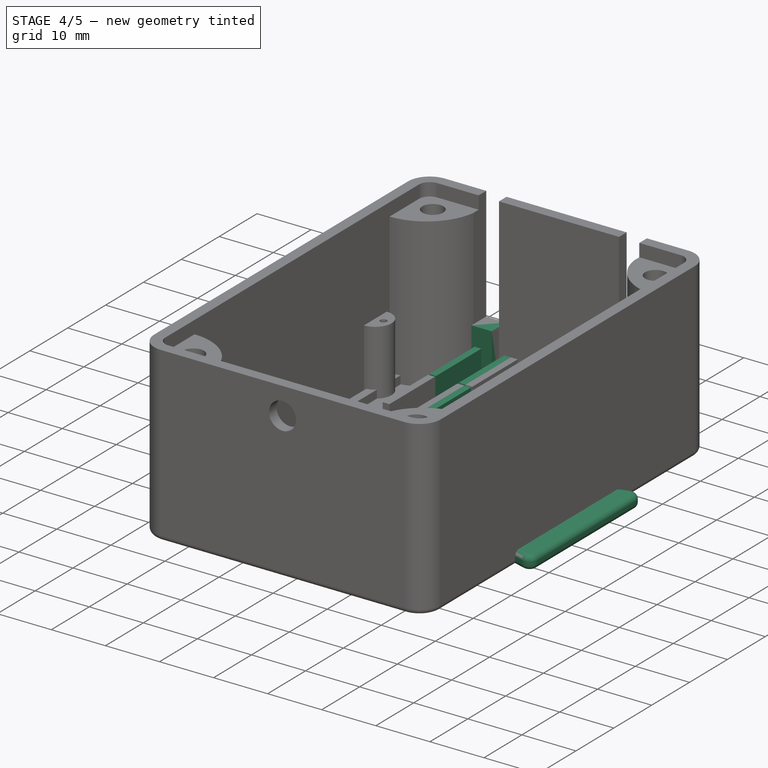
[diagram: stage 4 of 5 — iso view after this stage's code; geometry added in this stage tinted green]
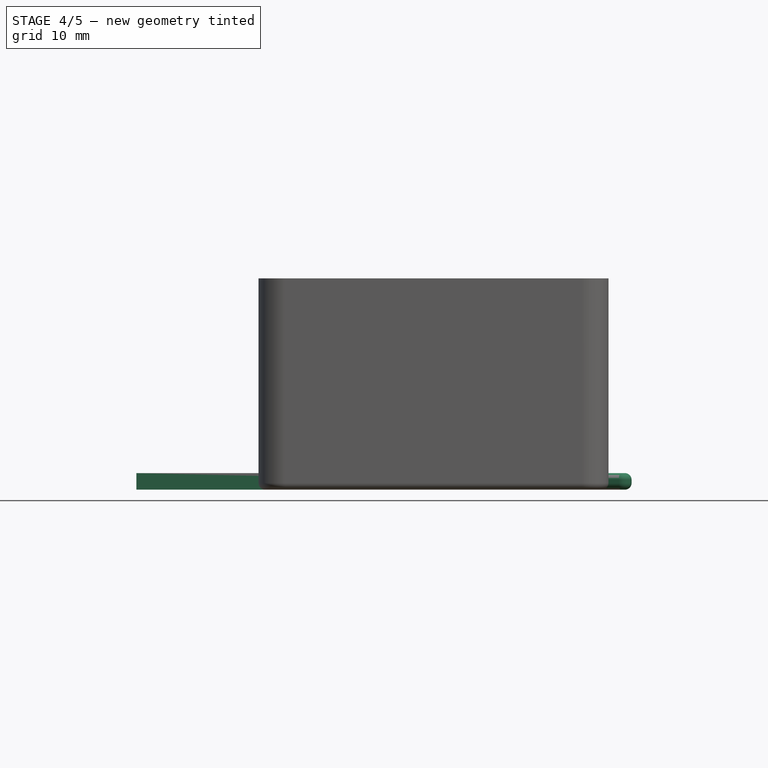
[diagram: stage 4 of 5 — front view after this stage's code; geometry added in this stage tinted green]
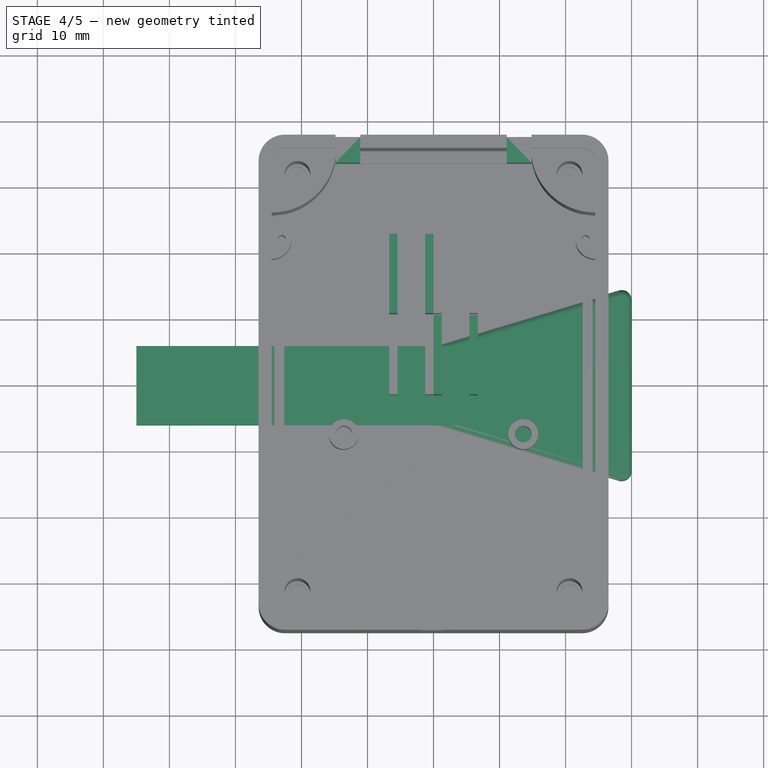
[diagram: stage 4 of 5 — top view after this stage's code; geometry added in this stage tinted green]
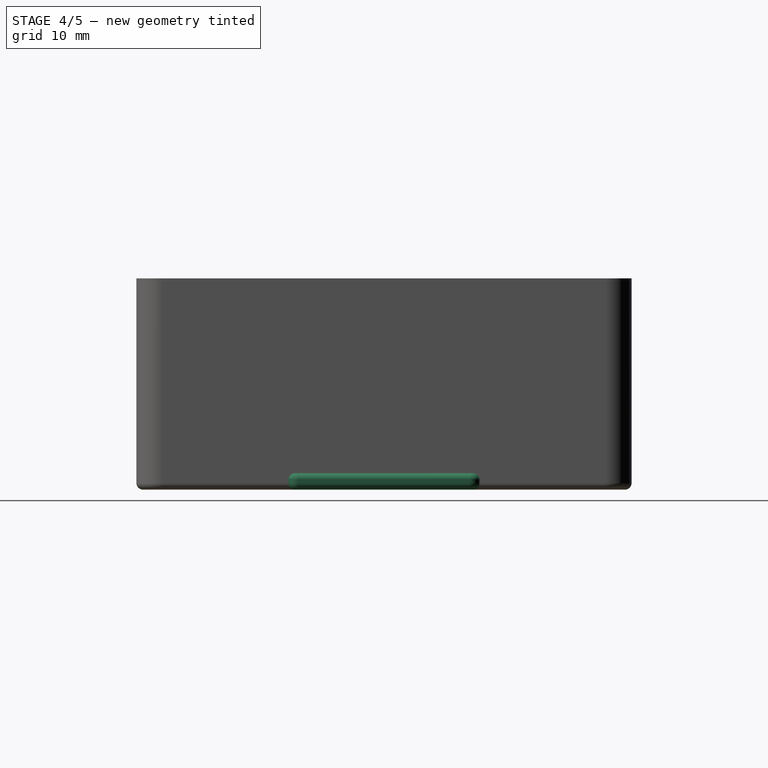
[diagram: stage 4 of 5 — right view after this stage's code; geometry added in this stage tinted green]
FEATURE [Spreadsheet::Sheet] Spreadsheet  label="p"
  cells = A1='button_stem_diameter; B1(button_stem_diameter)=6; A2='button_stem_length; B2(button_stem_length)=8.15; A3='button_body_width; B3(button_body_width)=12; A4='button_body_length; B4(button_body_length)=12; A5='button_body_depth; B5(button_body_depth)=4.2; A6='button_lug_spacing; B6(button_lug_spacing)=4; A7='button_lug_diameter; B7(button_lug_diameter)=1.1; A9='key_stem_length; B9(key_stem_length)=45; A10='key_paddle_length; B10(key_paddle_length)=30; A11='key_paddle_width; B11(key_paddle_width)=30; A12='key_paddle_thickness; B12(key_paddle_thickness)=2.5; A14='key_lug_length; B14(key_lug_length)=3; A16='spring_wire_diameter; B16(spring_wire_diameter)=1.2; A18='box_outer_width; B18(box_outer_width)=53; A19='box_outer_length; B19(box_outer_length)=75; A20='box_outer_depth; B20(box_outer_depth)=32; A22='box_inner_width; B22(box_inner_width)==B18 - B29 * 2; C22='Calculated; A23='box_inner_length; B23(box_inner_length)==B19 - B29 * 2; C23='Calculated; A24='box_inner_depth; B24(box_inner_depth)==B20 - B29; C24='Calculated; A26='box_outer_radius; B26(box_outer_radius)==B29 + 2; C26='Calculated; A27='box_inner_radius; B27(box_inner_radius)==B26 / 2; C27='Calculated; A29='box_wall_thickness; B29(box_wall_thickness)=2; A30='box_wall_clearance; B30(box_wall_clearance)==B29 * 0.2; C30='Calculated 20%; A32='lug_insert_diameter; B32(lug_insert_diameter)=3.9; A33='lug_depth; B33(lug_depth)==B24 - B29; A34='lug_outer_radius; B34(lug_outer_radius)==B32 * 2.5; A36='face_fillet; B36(face_fillet)=1; A38='lid_ridge_size; B38(lid_ridge_size)=1.5; A39='lid_screw_diameter; B39(lid_screw_diameter)=3; A40='lid_screw_chamfer; B40(lid_screw_chamfer)=1.98; A42='button_lip_clearance; B42(button_lip_clearance)=2.75
FEATURE [Sketcher::SketchObject] Sketch
  FullyConstrained = true
  MapMode = 5
  Support = -> [XY_Plane001]
  expr: Constraints[12] = <<p>>.button_body_length
  expr: Constraints[13] = <<p>>.button_body_length / 2
  expr: Constraints[14] = <<p>>.key_stem_length
  expr: Constraints[15] = <<p>>.key_paddle_length
  expr: Constraints[16] = <<p>>.key_paddle_length / 2
  expr: Constraints[17] = <<p>>.key_paddle_width
  sketch-geometry (6):
    g0: LineSegment StartX=0 StartY=6 StartZ=0 EndX=-45 EndY=6 EndZ=0
    g1: LineSegment StartX=-45 StartY=6 StartZ=0 EndX=-45 EndY=-6 EndZ=0
    g2: LineSegment StartX=-45 StartY=-6 StartZ=0 EndX=0 EndY=-6 EndZ=0
    g3: LineSegment StartX=0 StartY=-6 StartZ=0 EndX=30 EndY=-15 EndZ=0
    g4: LineSegment StartX=30 StartY=-15 StartZ=0 EndX=30 EndY=15 EndZ=0
    g5: LineSegment StartX=30 StartY=15 StartZ=0 EndX=0 EndY=6 EndZ=0
  constraints (18):
    c: PointOnObject(g0,g-2)
    c: Horizontal(g0)
    c: Coincident(g0,g1)
    c: Vertical(g1)
    c: Coincident(g1,g2)
    c: PointOnObject(g2,g-2)
    c: Horizontal(g2)
    c: Coincident(g2,g3)
    c: Coincident(g3,g4)
    c: Vertical(g4)
    c: Coincident(g4,g5)
    c: Coincident(g5,g0)
    c: DistanceY(g1,g1) = 12
    c: DistanceY(g-1,g0) = 6
    c: DistanceX(g0,g0) = 45
    c: DistanceY(g4,g4) = 30
    c: DistanceY(g-1,g4) = 15
    c: DistanceX(g-1,g4) = 30
FEATURE [PartDesign::Pad] Pad  label="KeyPad"
  Direction = (0,0,1)
  Length = 2.5
  Length2 = 10
  Profile = -> Sketch
  ReferenceAxis = -> Sketch [N_Axis]
  Type = 0
  expr: Length = <<p>>.key_paddle_thickness
FEATURE [PartDesign::Fillet] Fillet  label="KeyEdgeFillet"
  Base = -> Pad [Edge14,Edge11]
  BaseFeature = -> Pad
  Radius = 1.5
  SupportTransform = false
  UseAllEdges = false
FEATURE [PartDesign::Fillet] Fillet001  label="KeySoftEdgeFillet"
  Base = -> Fillet [Edge20,Edge11,Edge9,Edge18,Edge16,Edge7,Edge4,Edge1,Edge5,Edge13]
  BaseFeature = -> Fillet
  Radius = 1
  SupportTransform = false
  UseAllEdges = false
FEATURE [PartDesign::Pad] Pad010  label="KeyHolderLid"
  BaseFeature = -> Chamfer
  Direction = (0,0,1)
  Length = 9
  Length2 = 10
  Profile = -> Sketch014
  ReferenceAxis = -> Sketch014 [N_Axis]
  Type = 0
  expr: Length = <<p>>.box_outer_depth / 2 - <<p>>.box_wall_thickness / 2 - <<p>>.button_body_length / 2
FEATURE [Sketcher::SketchObject] Sketch016
  FullyConstrained = true
  MapMode = 5
  Placement = pos=(0,0,2) rot=(0,0,1;0rad)
  Support = -> [Pad009]
  expr: Constraints[20] = <<p>>.button_body_length
  expr: Constraints[21] = <<p>>.button_body_length
  expr: Constraints[40] = <<p>>.button_body_length
  expr: Constraints[41] = <<p>>.button_body_length
  expr: Constraints[44] = <<p>>.button_body_depth
  expr: Constraints[45] = <<p>>.button_body_depth
  expr: Constraints[47] = -<<p>>.box_outer_length / 2 + <<p>>.key_stem_length - <<p>>.button_body_width / 2
  sketch-geometry (16):
    g0: LineSegment StartX=0 StartY=22.8 StartZ=0 EndX=-1.25 EndY=22.8 EndZ=0
    g1: LineSegment StartX=-1.25 StartY=22.8 StartZ=0 EndX=-1.25 EndY=10.8 EndZ=0
    g2: LineSegment StartX=-1.25 StartY=10.8 StartZ=0 EndX=0 EndY=10.8 EndZ=0
    g3: LineSegment StartX=0 StartY=10.8 StartZ=0 EndX=0 EndY=22.8 EndZ=0
    g4: LineSegment StartX=0 StartY=-1.5 StartZ=0 EndX=1.25 EndY=-1.5 EndZ=0
    g5: LineSegment StartX=1.25 StartY=-1.5 StartZ=0 EndX=1.25 EndY=10.5 EndZ=0
    g6: LineSegment StartX=1.25 StartY=10.5 StartZ=0 EndX=0 EndY=10.5 EndZ=0
    g7: LineSegment StartX=0 StartY=10.5 StartZ=0 EndX=0 EndY=-1.5 EndZ=0
    g8: LineSegment StartX=5.45 StartY=10.5 StartZ=0 EndX=6.7 EndY=10.5 EndZ=0
    g9: LineSegment StartX=6.7 StartY=10.5 StartZ=0 EndX=6.7 EndY=-1.5 EndZ=0
    g10: LineSegment StartX=6.7 StartY=-1.5 StartZ=0 EndX=5.45 EndY=-1.5 EndZ=0
    g11: LineSegment StartX=5.45 StartY=-1.5 StartZ=0 EndX=5.45 EndY=10.5 EndZ=0
    g12: LineSegment StartX=-6.7 StartY=22.8 StartZ=0 EndX=-5.45 EndY=22.8 EndZ=0
    g13: LineSegment StartX=-5.45 StartY=22.8 StartZ=0 EndX=-5.45 EndY=10.8 EndZ=0
    g14: LineSegment StartX=-5.45 StartY=10.8 StartZ=0 EndX=-6.7 EndY=10.8 EndZ=0
    g15: LineSegment StartX=-6.7 StartY=10.8 StartZ=0 EndX=-6.7 EndY=22.8 EndZ=0
  constraints (48):
    c: Coincident(g0,g1)
    c: Coincident(g1,g2)
    c: Coincident(g2,g3)
    c: Coincident(g3,g0)
    c: Horizontal(g0)
    c: Horizontal(g2)
    c: Vertical(g1)
    c: Vertical(g3)
    c: PointOnObject(g0,g-2)
    c: Coincident(g4,g5)
    c: Coincident(g5,g6)
    c: Coincident(g6,g7)
    c: Coincident(g7,g4)
    c: Horizontal(g4)
    c: Horizontal(g6)
    c: Vertical(g5)
    c: Vertical(g7)
    c: PointOnObject(g4,g-2)
    c: DistanceX(g6,g6) = 1.25
    c: DistanceX(g0,g0) = 1.25
    c: DistanceY(g1,g1) = 12
    c: DistanceY(g5,g5) = 12
    c: Coincident(g8,g9)
    c: Coincident(g9,g10)
    c: Coincident(g10,g11)
    c: Coincident(g11,g8)
    c: Horizontal(g8)
    c: Horizontal(g10)
    c: Vertical(g9)
    c: Vertical(g11)
    c: Coincident(g12,g13)
    c: Coincident(g13,g14)
    c: Coincident(g14,g15)
    c: Coincident(g15,g12)
    c: Horizontal(g12)
    c: Horizontal(g14)
    c: Vertical(g13)
    c: Vertical(g15)
    c: DistanceX(g10,g10) = 1.25
    c: DistanceX(g14,g14) = 1.25
    c: DistanceY(g9,g9) = 12
    c: DistanceY(g15,g15) = 12
    c: DistanceY(g13,g1) = 0
    c: DistanceY(g4,g10) = 0
    c: DistanceX(g13,g1) = 4.2
    c: DistanceX(g4,g10) = 4.2
    c: DistanceY(g6,g2) = 0.3
    c: DistanceY(g4,g-1) = 1.5
FEATURE [PartDesign::Pad] Pad012
  BaseFeature = -> Pad010
  Direction = (0,0,1)
  Length = 11.75
  Length2 = 10
  Profile = -> Sketch016
  ReferenceAxis = -> Sketch016 [N_Axis]
  Type = 0
  expr: Length = <<p>>.box_outer_depth / 2 - <<p>>.box_wall_thickness / 2 - <<p>>.button_body_length / 2 + <<p>>.button_lip_clearance
FEATURE [Sketcher::SketchObject] Sketch019
  FullyConstrained = true
  MapMode = 5
  Placement = pos=(0,0,2) rot=(0,0,1;0rad)
  Support = -> [Pad012]
  expr: Constraints[16] = <<p>>.key_paddle_thickness * 1.5
  expr: Constraints[17] = <<p>>.key_paddle_thickness * 1.5
  expr: Constraints[18] = <<p>>.button_body_depth + <<p>>.button_stem_length + <<p>>.key_paddle_thickness
  expr: Constraints[19] = <<p>>.button_body_depth + <<p>>.button_stem_length + <<p>>.key_paddle_thickness
  expr: Constraints[20] = <<p>>.box_outer_length / 2
  expr: Constraints[21] = <<p>>.box_outer_length / 2
  sketch-geometry (8):
    g0: LineSegment StartX=-14.85 StartY=37.5 StartZ=0 EndX=-11.1 EndY=37.5 EndZ=0
    g1: LineSegment StartX=-11.1 StartY=37.5 StartZ=0 EndX=-11.1 EndY=33.6 EndZ=0
    g2: LineSegment StartX=-11.1 StartY=33.6 StartZ=0 EndX=-14.85 EndY=33.6 EndZ=0
    g3: LineSegment StartX=-14.85 StartY=33.6 StartZ=0 EndX=-14.85 EndY=37.5 EndZ=0
    g4: LineSegment StartX=14.85 StartY=37.5 StartZ=0 EndX=11.1 EndY=37.5 EndZ=0
    g5: LineSegment StartX=11.1 StartY=37.5 StartZ=0 EndX=11.1 EndY=33.6 EndZ=0
    g6: LineSegment StartX=11.1 StartY=33.6 StartZ=0 EndX=14.85 EndY=33.6 EndZ=0
    g7: LineSegment StartX=14.85 StartY=33.6 StartZ=0 EndX=14.85 EndY=37.5 EndZ=0
  constraints (24):
    c: Coincident(g0,g1)
    c: Coincident(g1,g2)
    c: Coincident(g2,g3)
    c: Coincident(g3,g0)
    c: Horizontal(g0)
    c: Horizontal(g2)
    c: Vertical(g1)
    c: Vertical(g3)
    c: Coincident(g4,g5)
    c: Coincident(g5,g6)
    c: Coincident(g6,g7)
    c: Coincident(g7,g4)
    c: Horizontal(g4)
    c: Horizontal(g6)
    c: Vertical(g5)
    c: Vertical(g7)
    c: DistanceX(g0,g0) = 3.75
    c: DistanceX(g4,g4) = 3.75
    c: DistanceX(g2,g-1) = 14.85
    c: DistanceX(g-1,g6) = 14.85
    c: DistanceY(g-1,g0) = 37.5
    c: DistanceY(g-1,g4) = 37.5
    c: DistanceY(g7,g7) = 3.9
    c: DistanceY(g1,g1) = 3.9
FEATURE [PartDesign::Pad] Pad013
  BaseFeature = -> Pad012
  Direction = (0,0,1)
  Length = 9
  Length2 = 10
  Profile = -> Sketch019
  ReferenceAxis = -> Sketch019 [N_Axis]
  Type = 0
  expr: Length = <<p>>.box_outer_depth / 2 - <<p>>.box_wall_thickness / 2 - <<p>>.button_body_length / 2
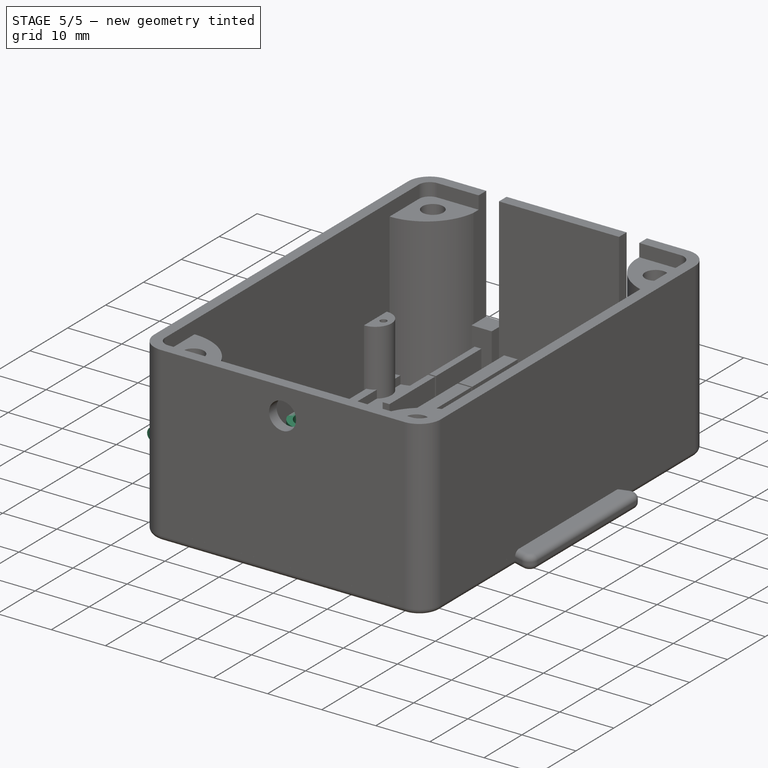
[diagram: stage 5 of 5 — iso view after this stage's code; geometry added in this stage tinted green]
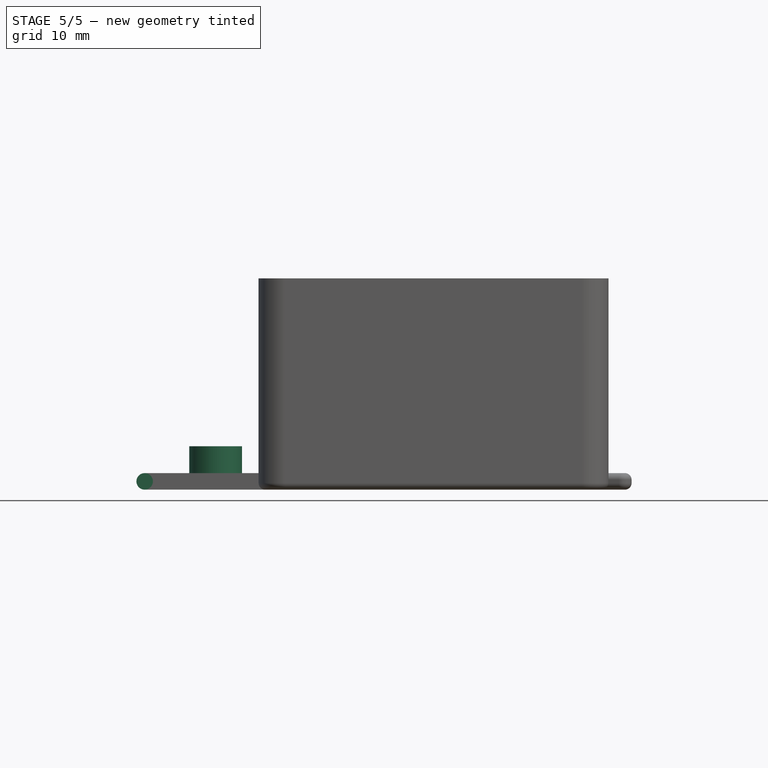
[diagram: stage 5 of 5 — front view after this stage's code; geometry added in this stage tinted green]
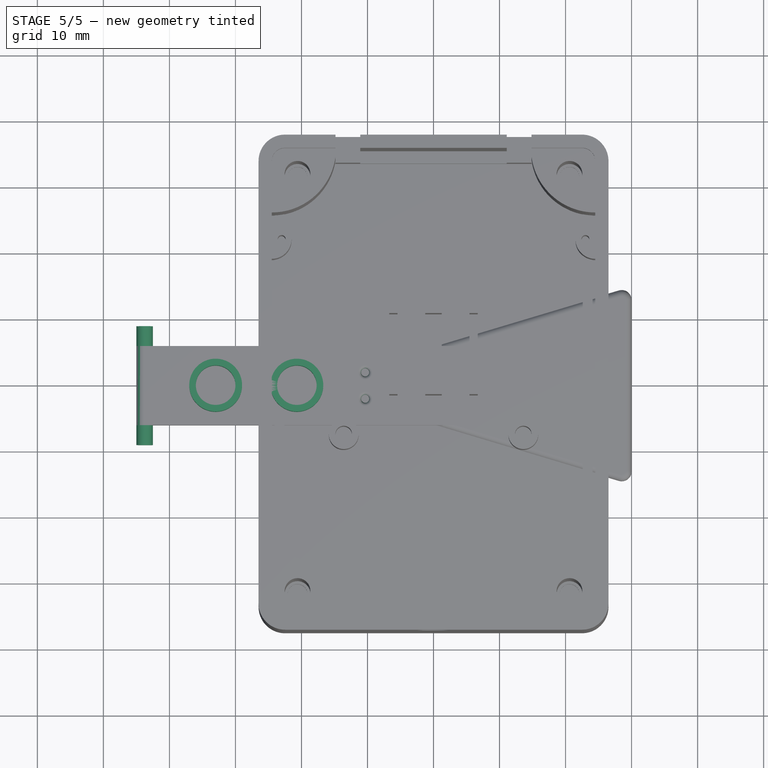
[diagram: stage 5 of 5 — top view after this stage's code; geometry added in this stage tinted green]
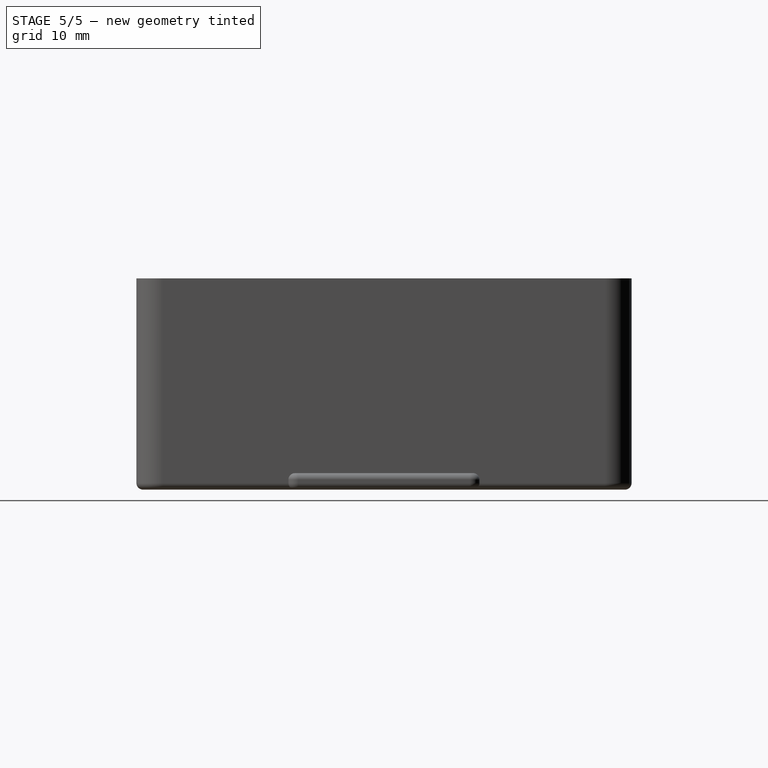
[diagram: stage 5 of 5 — right view after this stage's code; geometry added in this stage tinted green]
FEATURE [PartDesign::Fillet] Fillet002  label="KeyLugFillet"
  Base = -> Fillet001 [Edge32,Edge26]
  BaseFeature = -> Fillet001
  Radius = 1.24
  SupportTransform = false
  UseAllEdges = false
  expr: Radius = <<p>>.key_paddle_thickness / 2 - 0.01
FEATURE [Sketcher::SketchObject] Sketch001
  FullyConstrained = true
  MapMode = 5
  Placement = pos=(0,-6,0) rot=(1,0,0;1.5708rad)
  Support = -> [Fillet002]
  expr: Constraints[0] = <<p>>.key_paddle_thickness
  expr: Constraints[1] = <<p>>.key_stem_length - <<p>>.key_paddle_thickness / 2
  expr: Constraints[2] = <<p>>.key_paddle_thickness / 2
  sketch-geometry (1):
    g0: Circle CenterX=-43.75 CenterY=1.25 CenterZ=0 NormalX=0 NormalY=0 NormalZ=1 AngleXU=0 Radius=1.25
  constraints (3):
    c: Diameter(g0) = 2.5
    c: DistanceX(g0,g-1) = 43.75
    c: DistanceY(g-1,g0) = 1.25
FEATURE [PartDesign::Pad] Pad001  label="KeyLugOne"
  BaseFeature = -> Fillet002
  Direction = (0,-1,2e-16)
  Length = 3
  Length2 = 10
  Profile = -> Sketch001
  ReferenceAxis = -> Sketch001 [N_Axis]
  Type = 0
  expr: Length = <<p>>.key_lug_length
FEATURE [Sketcher::SketchObject] Sketch002
  FullyConstrained = true
  MapMode = 5
  Placement = pos=(0,6,0) rot=(0,0.707107,0.707107;3.14159rad)
  Support = -> [Pad001]
  expr: Constraints[0] = <<p>>.key_paddle_thickness
  expr: Constraints[1] = <<p>>.key_stem_length - <<p>>.key_paddle_thickness / 2
  expr: Constraints[2] = <<p>>.key_paddle_thickness / 2
  sketch-geometry (1):
    g0: Circle CenterX=43.75 CenterY=1.25 CenterZ=0 NormalX=0 NormalY=0 NormalZ=1 AngleXU=0 Radius=1.25
  constraints (3):
    c: Diameter(g0) = 2.5
    c: DistanceX(g-1,g0) = 43.75
    c: DistanceY(g-1,g0) = 1.25
FEATURE [PartDesign::Pad] Pad002  label="KeyLugTwo"
  BaseFeature = -> Pad001
  Direction = (0,1,-2e-16)
  Length = 3
  Length2 = 10
  Profile = -> Sketch002
  ReferenceAxis = -> Sketch002 [N_Axis]
  Type = 0
  expr: Length = <<p>>.key_lug_length
FEATURE [Sketcher::SketchObject] Sketch003
  FullyConstrained = true
  MapMode = 5
  Placement = pos=(0,0,2.5) rot=(0,0,1;0rad)
  Support = -> [Pad002]
  expr: Constraints[5] = <<p>>.button_stem_diameter
  expr: Constraints[7] = <<p>>.button_stem_diameter + 2
  expr: Constraints[8] = <<p>>.key_stem_length - <<p>>.button_body_width
  expr: Constraints[9] = <<p>>.key_stem_length - <<p>>.button_body_width * 2 - 0.3
  sketch-geometry (4):
    g0: Circle CenterX=-33 CenterY=0 CenterZ=0 NormalX=0 NormalY=0 NormalZ=1 AngleXU=0 Radius=3
    g1: Circle CenterX=-20.7 CenterY=0 CenterZ=0 NormalX=0 NormalY=0 NormalZ=1 AngleXU=0 Radius=3
    g2: Circle CenterX=-20.7 CenterY=0 CenterZ=0 NormalX=0 NormalY=0 NormalZ=1 AngleXU=0 Radius=4
    g3: Circle CenterX=-33 CenterY=0 CenterZ=0 NormalX=0 NormalY=0 NormalZ=1 AngleXU=0 Radius=4
  constraints (10):
    c: PointOnObject(g0,g-1)
    c: PointOnObject(g1,g-1)
    c: Coincident(g2,g1)
    c: Coincident(g3,g0)
    c: Equal(g0,g1)
    c: Diameter(g0) = 6
    c: Equal(g2,g3)
    c: Diameter(g2) = 8
    c: DistanceX(g0,g-1) = 33
    c: DistanceX(g1,g-1) = 20.7
FEATURE [PartDesign::Pad] Pad003  label="KeyButtonMounts"
  BaseFeature = -> Pad002
  Direction = (0,0,1)
  Length = 4.075
  Length2 = 10
  Profile = -> Sketch003
  ReferenceAxis = -> Sketch003 [N_Axis]
  Type = 0
  expr: Length = <<p>>.button_stem_length / 2
FEATURE [Sketcher::SketchObject] Sketch004
  FullyConstrained = true
  MapMode = 5
  Placement = pos=(0,0,2.5) rot=(0,0,1;0rad)
  Support = -> [Pad003]
  expr: Constraints[1] = <<p>>.spring_wire_diameter
  sketch-geometry (2):
    g0: Circle CenterX=-10.35 CenterY=2 CenterZ=0 NormalX=0 NormalY=0 NormalZ=1 AngleXU=0 Radius=0.6
    g1: Circle CenterX=-10.35 CenterY=-2 CenterZ=0 NormalX=0 NormalY=0 NormalZ=1 AngleXU=0 Radius=0.6
  constraints (6):
    c: Equal(g0,g1)
    c: Diameter(g0) = 1.2
    c: DistanceX(g0,g-1) = 10.35
    c: DistanceX(g1,g-1) = 10.35
    c: DistanceY(g1,g-1) = 2
    c: DistanceY(g-1,g0) = 2
FEATURE [PartDesign::Pocket] Pocket  label="SpringHoles"
  BaseFeature = -> Pad003
  Direction = (0,0,-1)
  Length = 5
  Length2 = 5
  Profile = -> Sketch004
  ReferenceAxis = -> Sketch004 [N_Axis]
  Type = 1
FEATURE [PartDesign::Fillet] Fillet003  label="SpringHolesFillet"
  Base = -> Pocket [Edge16,Edge17,Edge52,Edge50]
  BaseFeature = -> Pocket
  Radius = 0.5
  SupportTransform = false
  UseAllEdges = false
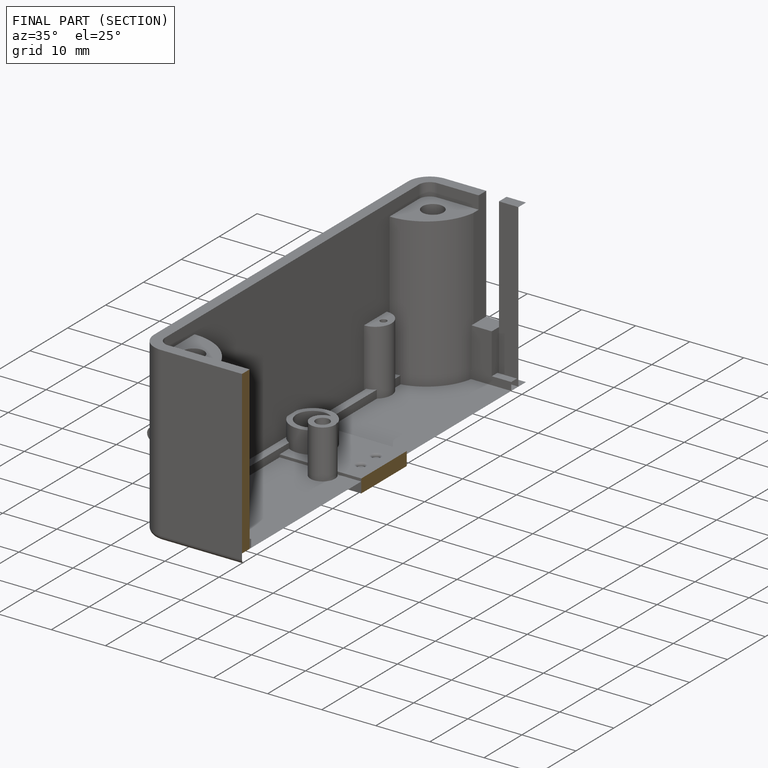
[diagram: finished part — half-section view (interior)]
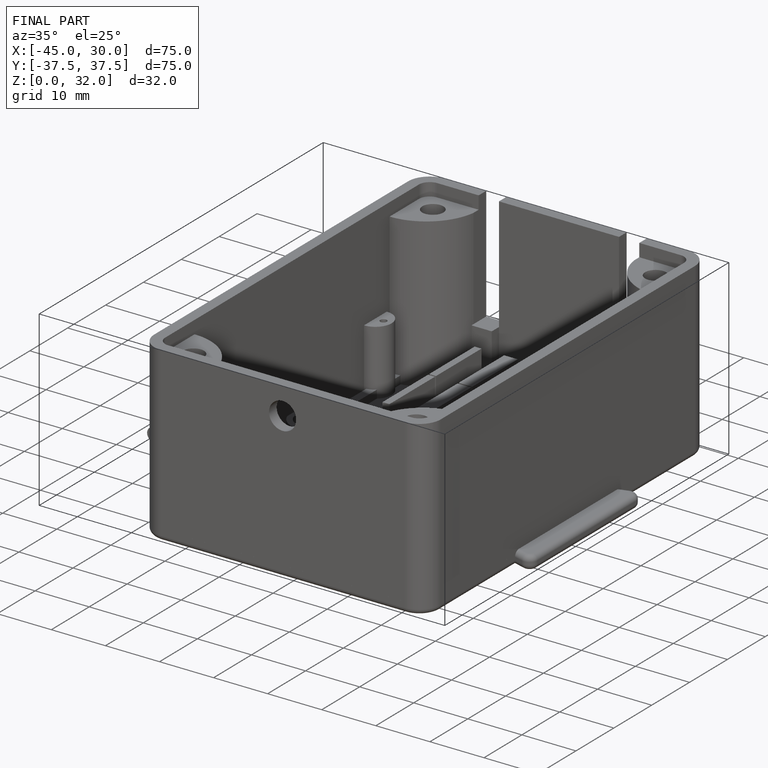
[diagram: finished part — iso view with bounding-box wireframe]
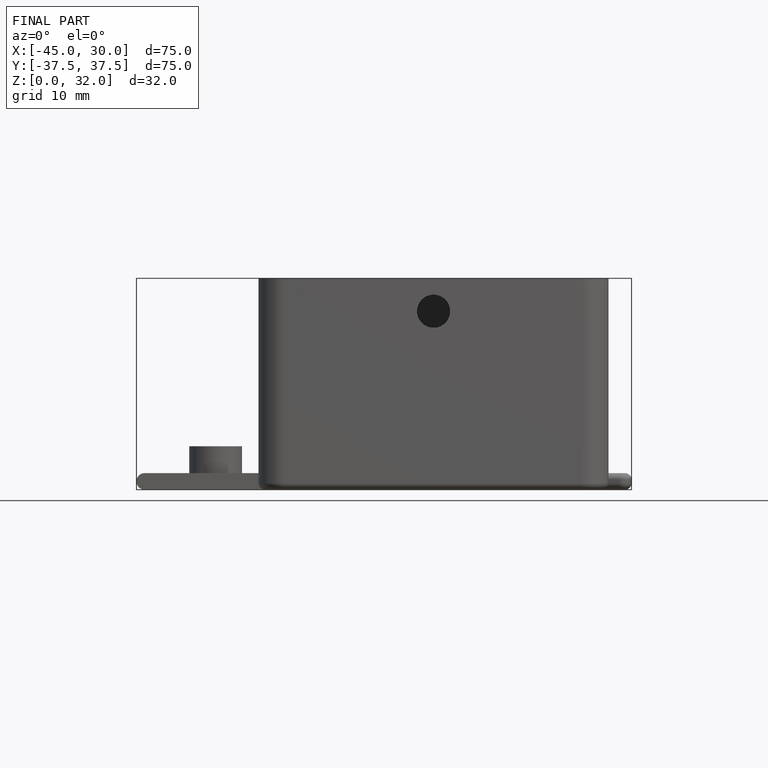
[diagram: finished part — front view with bounding-box wireframe]
